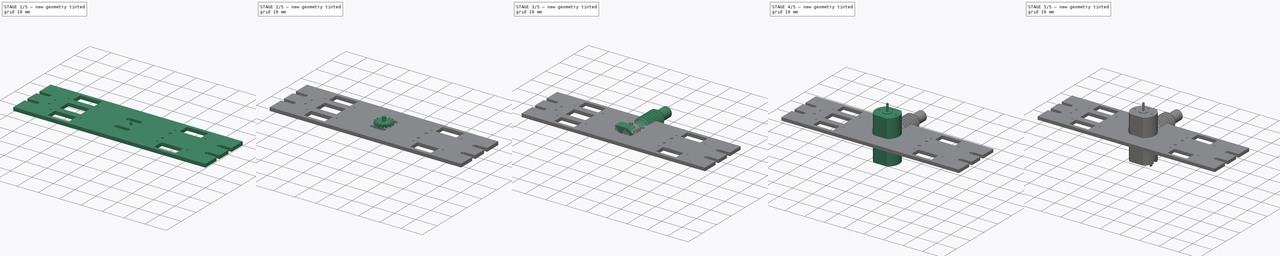
[diagram: build sequence overview — one tinted view per stage of 5, left to right]
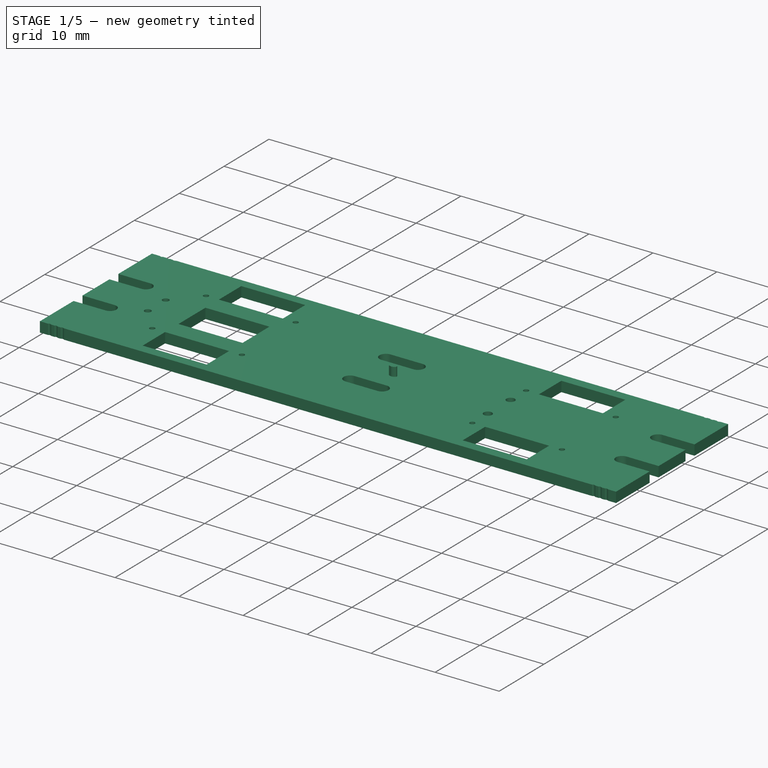
[diagram: stage 1 of 5 — iso view after this stage's code; geometry added in this stage tinted green]
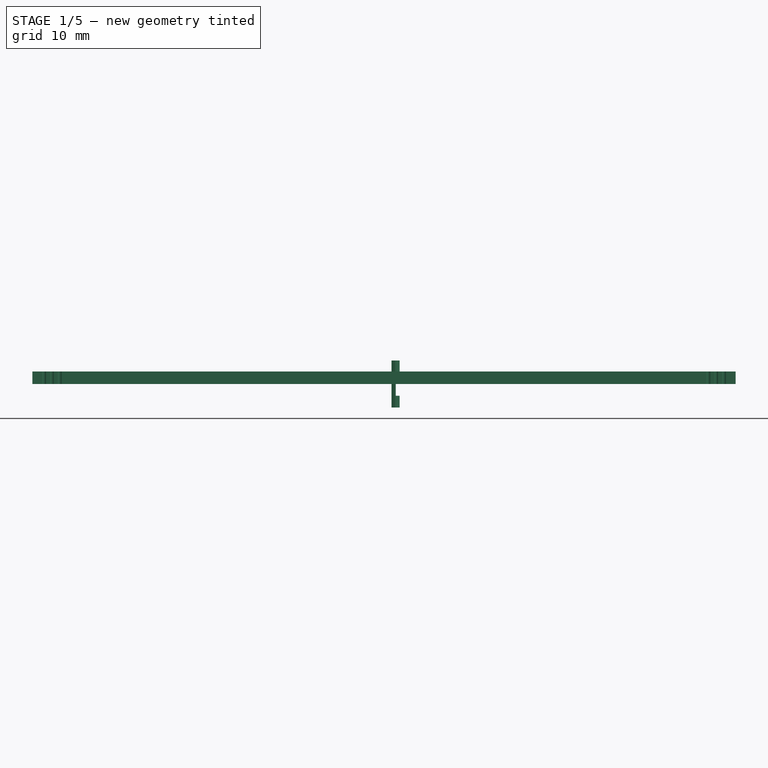
[diagram: stage 1 of 5 — front view after this stage's code; geometry added in this stage tinted green]
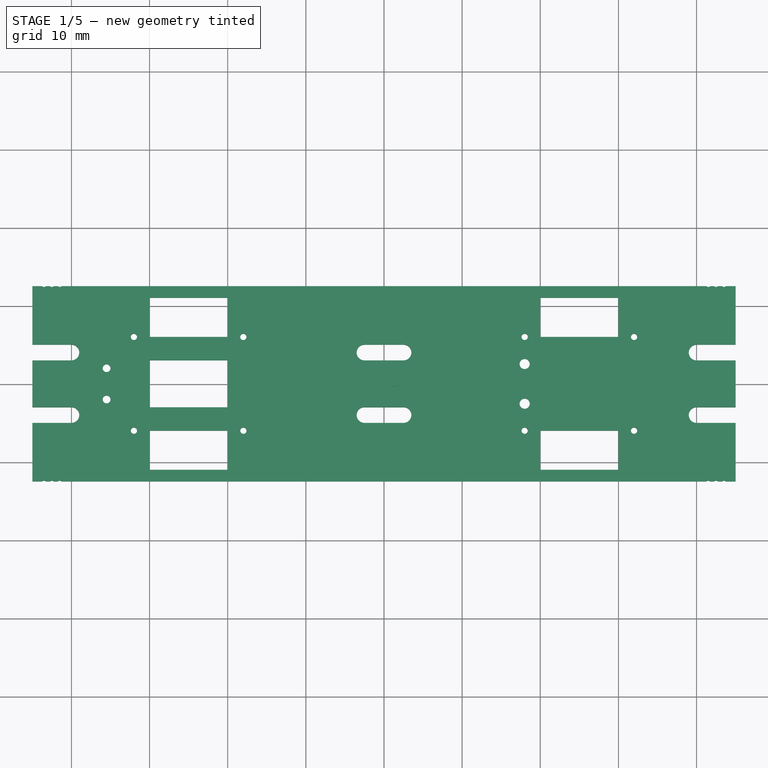
[diagram: stage 1 of 5 — top view after this stage's code; geometry added in this stage tinted green]
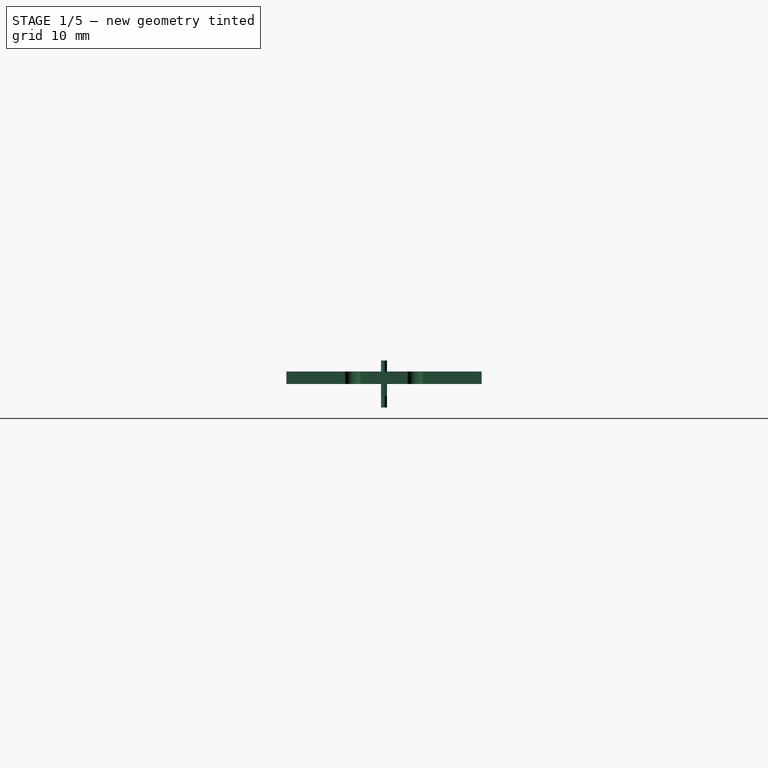
[diagram: stage 1 of 5 — right view after this stage's code; geometry added in this stage tinted green]
FCSTD DOCUMENT  (FreeCAD 0.18R16131 (Git))
Label: Engine Mockup
License: All rights reserved
LicenseURL: http://en.wikipedia.org/wiki/All_rights_reserved
objects: App::Part×80, Part::Feature×77, Sketcher::SketchObject×18, PartDesign::Pad×11, PartDesign::Body×6, PartDesign::Pocket×5, PartDesign::Groove×3, Part::Part2DObjectPython×3, PartDesign::PolarPattern×1, PartDesign::Revolution×1, PartDesign::FeatureBase×1
note: 146 computed .brp shape members not serialized (recipe doc carries the construction recipe); baked Part::Feature solids carry a one-line shape summary decoded from their .brp

FEATURE [PartDesign::Body] Body005  label="Body007"
  Group = -> [InvoluteGear,Sketch015,Pad,Sketch001,Groove001]
  Origin = -> Origin058
  Tip = -> Groove001
FEATURE [Sketcher::SketchObject] Sketch016
  MapMode = 5
  Placement = pos=(0,0,0) rot=(1,0,0;1.5708rad)
  Support = -> [XZ_Plane001]
  sketch-geometry (10):
    g0: LineSegment StartX=-4.57972 StartY=1.5 StartZ=0 EndX=-1.5 EndY=1.5 EndZ=0
    g1: LineSegment StartX=-1.5 StartY=1.5 StartZ=0 EndX=-1.5 EndY=-1.5 EndZ=0
    g2: LineSegment StartX=-1.5 StartY=-1.5 StartZ=0 EndX=-4.57972 EndY=-1.5 EndZ=0
    g3: LineSegment StartX=-4.57972 StartY=-1.5 StartZ=0 EndX=-4.57972 EndY=1.5 EndZ=0
    g4: LineSegment StartX=0 StartY=5 StartZ=0 EndX=-1 EndY=5 EndZ=0
    g5: LineSegment StartX=-1 StartY=5 StartZ=0 EndX=-1 EndY=-5 EndZ=0
    g6: LineSegment StartX=-1 StartY=-5 StartZ=0 EndX=0 EndY=-5 EndZ=0
    g7: LineSegment StartX=0 StartY=-5 StartZ=0 EndX=0 EndY=5 EndZ=0
    g8: LineSegment [constr] StartX=-1 StartY=5 StartZ=0 EndX=-1.5 EndY=1.5 EndZ=0
    g9: LineSegment [constr] StartX=-1.5 StartY=-1.5 StartZ=0 EndX=-1 EndY=-5 EndZ=0
  constraints (27):
    c: Coincident(g0,g1)
    c: Coincident(g1,g2)
    c: Coincident(g2,g3)
    c: Coincident(g3,g0)
    c: Horizontal(g0)
    c: Horizontal(g2)
    c: Vertical(g1)
    c: Vertical(g3)
    c: DistanceX(g0,g-1) = 1.5
    c: DistanceY(g-1,g0) = 1.5
    c: DistanceY(g2,g-1) = 1.5
    c: Coincident(g4,g5)
    c: Coincident(g5,g6)
    c: Coincident(g6,g7)
    c: Coincident(g7,g4)
    c: Horizontal(g4)
    c: Horizontal(g6)
    c: Vertical(g5)
    c: Vertical(g7)
    c: PointOnObject(g4,g-2)
    c: Coincident(g8,g4)
    c: Coincident(g8,g0)
    c: Coincident(g9,g1)
    c: Coincident(g9,g5)
    c: DistanceX(g4,g4) = 1
    c: Equal(g8,g9)
    c: DistanceY(g7,g7) = 10
FEATURE [Sketcher::SketchObject] Sketch017
  MapMode = 5
  Support = -> [XY_Plane001]
  sketch-geometry (2):
    g0: Circle CenterX=0 CenterY=0 CenterZ=0 NormalX=0 NormalY=0 NormalZ=1 AngleXU=0 Radius=4
    g1: Circle CenterX=0 CenterY=0 CenterZ=0 NormalX=0 NormalY=0 NormalZ=1 AngleXU=0 Radius=2
  constraints (4):
    c: Coincident(g0,g-1)
    c: Coincident(g1,g0)
    c: Diameter(g1) = 4
    c: Diameter(g0) = 8
FEATURE [Part::Part2DObjectPython] InvoluteGear001  # Draft 2D object (typed FeaturePython)
  ExternalGear = true
  HighPrecision = true
  Modules = 0.5
  NumberOfTeeth = 6
  PressureAngle = 20
FEATURE [PartDesign::Pad] Pad007
  Length = 6
  Length2 = 100
  Midplane = true
  Profile = -> InvoluteGear001
  Type = 0
FEATURE [PartDesign::Groove] Groove002
  Angle = 360
  Axis = (-3e-16,3e-16,1)
  Base = (0,0,0)
  BaseFeature = -> Pad007
  Profile = -> Sketch016
  ReferenceAxis = -> Z_Axis001
  Reversed = true
FEATURE [PartDesign::Body] Body006  label="Body008"
  Group = -> [InvoluteGear001,Sketch017,Pad007,Sketch016,Groove002,Pad008,InvoluteGear002,Pad009,Sketch018,Pad010]
  Origin = -> Origin001
  Placement = pos=(-5,0,0) rot=(0,0,1;0rad)
  Tip = -> Pad010
FEATURE [App::Part] Part003
  Group = -> [Body005,Body006]
  Origin = -> Origin059
  Placement = pos=(0,0,0) rot=(1,0,0;1.5708rad)
FEATURE [App::Part] Part004
  Group = -> [Part003]
  Origin = -> Origin060
  Placement = pos=(-25,0,0) rot=(0,1,0;1.5708rad)
FEATURE [App::Part] Part  label="Wheels"
  Group = -> [Part__Feature,Part__Feature028,Part004]
  Origin = -> Origin
  Placement = pos=(0,0,-7) rot=(0,0,1;0rad)
FEATURE [Part::Feature] Part__Feature064  label="SOLID012"
  shape: bbox 2 x 1.2 x 0.45 mm, 26 faces (baked)
FEATURE [App::Part] R_0805_2012Metric
  Group = -> [Part__Feature064]
  Origin = -> Origin061
  Placement = pos=(40,9.5,-0.05) rot=(1,0,0;3.14159rad)
FEATURE [Part::Feature] Part__Feature065  label="SOLID013"
  shape: bbox 2 x 1.2 x 0.45 mm, 26 faces (baked)
FEATURE [App::Part] R_0805_2012Metric001
  Group = -> [Part__Feature065]
  Origin = -> Origin062
  Placement = pos=(35,9.5,-0.05) rot=(1,0,0;3.14159rad)
FEATURE [Part::Feature] Part__Feature067  label="SOLID015"
  shape: bbox 2 x 1.2 x 0.45 mm, 26 faces (baked)
FEATURE [App::Part] R_0805_2012Metric002
  Group = -> [Part__Feature067]
  Origin = -> Origin064
  Placement = pos=(22.5,3.5,1.65) rot=(0,0,1;1.5708rad)
FEATURE [Part::Feature] Part__Feature069  label="SOLID017"
  shape: bbox 2 x 1.2 x 0.45 mm, 26 faces (baked)
FEATURE [App::Part] R_0805_2012Metric003
  Group = -> [Part__Feature069]
  Origin = -> Origin066
  Placement = pos=(15,9.5,-0.05) rot=(1,0,0;3.14159rad)
FEATURE [Part::Feature] Part__Feature070  label="SOLID018"
  shape: bbox 2 x 1.2 x 0.45 mm, 26 faces (baked)
FEATURE [App::Part] R_0805_2012Metric004
  Group = -> [Part__Feature070]
  Origin = -> Origin067
  Placement = pos=(10,9.5,-0.05) rot=(1,0,0;3.14159rad)
FEATURE [Part::Feature] Part__Feature071  label="SOLID019"
  shape: bbox 2 x 1.2 x 0.45 mm, 26 faces (baked)
FEATURE [App::Part] R_0805_2012Metric005
  Group = -> [Part__Feature071]
  Origin = -> Origin068
  Placement = pos=(5,9.5,-0.05) rot=(1,0,0;3.14159rad)
FEATURE [Part::Feature] Part__Feature072  label="SOLID020"
  shape: bbox 2 x 1.2 x 0.45 mm, 26 faces (baked)
FEATURE [App::Part] R_0805_2012Metric006
  Group = -> [Part__Feature072]
  Origin = -> Origin069
  Placement = pos=(0,9.5,-0.05) rot=(1,0,0;3.14159rad)
FEATURE [Part::Feature] Part__Feature073  label="SOLID021"
  shape: bbox 2 x 1.2 x 0.45 mm, 26 faces (baked)
FEATURE [App::Part] R_0805_2012Metric007
  Group = -> [Part__Feature073]
  Origin = -> Origin070
  Placement = pos=(-5,9.5,-0.05) rot=(1,0,0;3.14159rad)
FEATURE [Part::Feature] Part__Feature074  label="SOLID022"
  shape: bbox 2 x 1.2 x 0.45 mm, 26 faces (baked)
FEATURE [App::Part] R_0805_2012Metric008
  Group = -> [Part__Feature074]
  Origin = -> Origin071
  Placement = pos=(-10,9.5,-0.05) rot=(1,0,0;3.14159rad)
FEATURE [Part::Feature] Part__Feature075  label="SOLID023"
  shape: bbox 2 x 1.2 x 0.45 mm, 26 faces (baked)
FEATURE [App::Part] R_0805_2012Metric009
  Group = -> [Part__Feature075]
  Origin = -> Origin072
  Placement = pos=(-15,9.5,-0.05) rot=(1,0,0;3.14159rad)
FEATURE [Part::Feature] Part__Feature078  label="SOLID026"
  shape: bbox 2 x 1.2 x 0.45 mm, 26 faces (baked)
FEATURE [App::Part] R_0805_2012Metric010
  Group = -> [Part__Feature078]
  Origin = -> Origin075
  Placement = pos=(20.5,3.5,1.65) rot=(0,0,1;1.5708rad)
FEATURE [Part::Feature] Part__Feature079  label="SOLID027"
  shape: bbox 2 x 1.2 x 0.45 mm, 26 faces (baked)
FEATURE [App::Part] R_0805_2012Metric011
  Group = -> [Part__Feature079]
  Origin = -> Origin076
  Placement = pos=(-35,9.5,-0.05) rot=(1,0,0;3.14159rad)
FEATURE [Part::Feature] Part__Feature080  label="SOLID028"
  shape: bbox 2 x 1.2 x 0.45 mm, 26 faces (baked)
FEATURE [App::Part] R_0805_2012Metric012
  Group = -> [Part__Feature080]
  Origin = -> Origin077
  Placement = pos=(-40,9.5,-0.05) rot=(1,0,0;3.14159rad)
FEATURE [Part::Feature] Part__Feature081  label="SOLID029"
  shape: bbox 2 x 1.27 x 0.8 mm, 39 faces (baked)
FEATURE [App::Part] D_0805_2012Metric
  Group = -> [Part__Feature081]
  Origin = -> Origin078
  Placement = pos=(40,11.5,-0.05) rot=(1,0,0;3.14159rad)
FEATURE [Part::Feature] Part__Feature082  label="SOLID030"
  shape: bbox 2 x 1.27 x 0.8 mm, 39 faces (baked)
FEATURE [App::Part] D_0805_2012Metric001
  Group = -> [Part__Feature082]
  Origin = -> Origin079
  Placement = pos=(35,11.5,-0.05) rot=(1,0,0;3.14159rad)
FEATURE [Part::Feature] Part__Feature083  label="SOLID031"
  shape: bbox 3.8 x 1.6 x 1.25 mm, 67 faces (baked)
FEATURE [App::Part] D_SOD_123  label="D_SOD-123"
  Group = -> [Part__Feature083]
  Origin = -> Origin080
  Placement = pos=(32,8.5,-0.05) rot=(0.707107,0.707107,0;3.14159rad)
FEATURE [Part::Feature] Part__Feature084  label="SOLID032"
  shape: bbox 3.8 x 1.6 x 1.25 mm, 67 faces (baked)
FEATURE [App::Part] D_SOD_123001  label="D_SOD-124"
  Group = -> [Part__Feature084]
  Origin = -> Origin081
  Placement = pos=(18,8.5,-0.05) rot=(-0.707107,0.707107,0;3.14159rad)
FEATURE [Part::Feature] Part__Feature085  label="SOLID033"
  shape: bbox 2 x 1.27 x 0.8 mm, 39 faces (baked)
FEATURE [App::Part] D_0805_2012Metric002
  Group = -> [Part__Feature085]
  Origin = -> Origin082
  Placement = pos=(15,11.5,-0.05) rot=(1,0,0;3.14159rad)
FEATURE [Part::Feature] Part__Feature086  label="SOLID034"
  shape: bbox 2 x 1.27 x 0.8 mm, 39 faces (baked)
FEATURE [App::Part] D_0805_2012Metric003
  Group = -> [Part__Feature086]
  Origin = -> Origin083
  Placement = pos=(10,11.5,-0.05) rot=(1,0,0;3.14159rad)
FEATURE [Part::Feature] Part__Feature087  label="SOLID035"
  shape: bbox 2 x 1.27 x 0.8 mm, 39 faces (baked)
FEATURE [App::Part] D_0805_2012Metric004
  Group = -> [Part__Feature087]
  Origin = -> Origin084
  Placement = pos=(5,11.5,-0.05) rot=(1,0,0;3.14159rad)
FEATURE [Part::Feature] Part__Feature088  label="SOLID036"
  shape: bbox 2 x 1.27 x 0.8 mm, 39 faces (baked)
FEATURE [App::Part] D_0805_2012Metric005
  Group = -> [Part__Feature088]
  Origin = -> Origin085
  Placement = pos=(0,11.5,-0.05) rot=(1,0,0;3.14159rad)
FEATURE [Part::Feature] Part__Feature089  label="SOLID037"
  shape: bbox 2 x 1.27 x 0.8 mm, 39 faces (baked)
FEATURE [App::Part] D_0805_2012Metric006
  Group = -> [Part__Feature089]
  Origin = -> Origin086
  Placement = pos=(-5,11.5,-0.05) rot=(1,0,0;3.14159rad)
FEATURE [Part::Feature] Part__Feature090  label="SOLID038"
  shape: bbox 2 x 1.27 x 0.8 mm, 39 faces (baked)
FEATURE [App::Part] D_0805_2012Metric007
  Group = -> [Part__Feature090]
  Origin = -> Origin087
  Placement = pos=(-10,11.5,-0.05) rot=(1,0,0;3.14159rad)
FEATURE [Part::Feature] Part__Feature091  label="SOLID039"
  shape: bbox 2 x 1.27 x 0.8 mm, 39 faces (baked)
FEATURE [App::Part] D_0805_2012Metric008
  Group = -> [Part__Feature091]
  Origin = -> Origin088
  Placement = pos=(-15,11.5,-0.05) rot=(1,0,0;3.14159rad)
FEATURE [Part::Feature] Part__Feature092  label="SOLID040"
  shape: bbox 3.8 x 1.6 x 1.25 mm, 67 faces (baked)
FEATURE [App::Part] D_SOD_123002  label="D_SOD-125"
  Group = -> [Part__Feature092]
  Origin = -> Origin089
  Placement = pos=(-32,8.5,-0.05) rot=(0.707107,0.707107,0;3.14159rad)
FEATURE [Part::Feature] Part__Feature093  label="SOLID041"
  shape: bbox 3.8 x 1.6 x 1.25 mm, 67 faces (baked)
FEATURE [App::Part] D_SOD_123003  label="D_SOD-126"
  Group = -> [Part__Feature093]
  Origin = -> Origin090
  Placement = pos=(-18,8.5,-0.05) rot=(-0.707107,0.707107,0;3.14159rad)
FEATURE [Part::Feature] Part__Feature094  label="SOLID042"
  shape: bbox 2 x 1.27 x 0.8 mm, 39 faces (baked)
FEATURE [App::Part] D_0805_2012Metric009
  Group = -> [Part__Feature094]
  Origin = -> Origin091
  Placement = pos=(-35,11.5,-0.05) rot=(1,0,0;3.14159rad)
FEATURE [Part::Feature] Part__Feature095  label="SOLID043"
  shape: bbox 2 x 1.27 x 0.8 mm, 39 faces (baked)
FEATURE [App::Part] D_0805_2012Metric010
  Group = -> [Part__Feature095]
  Origin = -> Origin092
  Placement = pos=(-40,11.5,-0.05) rot=(1,0,0;3.14159rad)
FEATURE [Part::Feature] Part__Feature096  label="SOLID044"
  shape: bbox 2 x 1.2 x 0.45 mm, 26 faces (baked)
FEATURE [App::Part] R_0805_2012Metric013
  Group = -> [Part__Feature096]
  Origin = -> Origin093
  Placement = pos=(40,-9.5,-0.05) rot=(1,0,0;3.14159rad)
FEATURE [Part::Feature] Part__Feature097  label="SOLID045"
  shape: bbox 2 x 1.2 x 0.45 mm, 26 faces (baked)
FEATURE [App::Part] R_0805_2012Metric014
  Group = -> [Part__Feature097]
  Origin = -> Origin094
  Placement = pos=(35,-9.5,-0.05) rot=(1,0,0;3.14159rad)
FEATURE [Part::Feature] Part__Feature099  label="SOLID047"
  shape: bbox 2 x 1.2 x 0.45 mm, 26 faces (baked)
FEATURE [App::Part] R_0805_2012Metric015
  Group = -> [Part__Feature099]
  Origin = -> Origin096
  Placement = pos=(22.5,-3.5,1.65) rot=(0,0,-1;1.5708rad)
FEATURE [Part::Feature] Part__Feature101  label="SOLID049"
  shape: bbox 2 x 1.2 x 0.45 mm, 26 faces (baked)
FEATURE [App::Part] R_0805_2012Metric016
  Group = -> [Part__Feature101]
  Origin = -> Origin098
  Placement = pos=(15,-9.5,-0.05) rot=(1,0,0;3.14159rad)
FEATURE [Part::Feature] Part__Feature102  label="SOLID050"
  shape: bbox 2 x 1.2 x 0.45 mm, 26 faces (baked)
FEATURE [App::Part] R_0805_2012Metric017
  Group = -> [Part__Feature102]
  Origin = -> Origin099
  Placement = pos=(10,-9.5,-0.05) rot=(1,0,0;3.14159rad)
FEATURE [Part::Feature] Part__Feature103  label="SOLID051"
  shape: bbox 2 x 1.2 x 0.45 mm, 26 faces (baked)
FEATURE [App::Part] R_0805_2012Metric018
  Group = -> [Part__Feature103]
  Origin = -> Origin100
  Placement = pos=(5,-9.5,-0.05) rot=(1,0,0;3.14159rad)
FEATURE [Part::Feature] Part__Feature104  label="SOLID052"
  shape: bbox 2 x 1.2 x 0.45 mm, 26 faces (baked)
FEATURE [App::Part] R_0805_2012Metric019
  Group = -> [Part__Feature104]
  Origin = -> Origin101
  Placement = pos=(0,-9.5,-0.05) rot=(1,0,0;3.14159rad)
FEATURE [Part::Feature] Part__Feature105  label="SOLID053"
  shape: bbox 2 x 1.2 x 0.45 mm, 26 faces (baked)
FEATURE [App::Part] R_0805_2012Metric020
  Group = -> [Part__Feature105]
  Origin = -> Origin102
  Placement = pos=(-5,-9.5,-0.05) rot=(1,0,0;3.14159rad)
FEATURE [Part::Feature] Part__Feature106  label="SOLID054"
  shape: bbox 2 x 1.2 x 0.45 mm, 26 faces (baked)
FEATURE [App::Part] R_0805_2012Metric021
  Group = -> [Part__Feature106]
  Origin = -> Origin103
  Placement = pos=(-10,-9.5,-0.05) rot=(1,0,0;3.14159rad)
FEATURE [Part::Feature] Part__Feature107  label="SOLID055"
  shape: bbox 2 x 1.2 x 0.45 mm, 26 faces (baked)
FEATURE [App::Part] R_0805_2012Metric022
  Group = -> [Part__Feature107]
  Origin = -> Origin104
  Placement = pos=(-15,-9.5,-0.05) rot=(1,0,0;3.14159rad)
FEATURE [Part::Feature] Part__Feature110  label="SOLID058"
  shape: bbox 2 x 1.2 x 0.45 mm, 26 faces (baked)
FEATURE [App::Part] R_0805_2012Metric023
  Group = -> [Part__Feature110]
  Origin = -> Origin107
  Placement = pos=(20.5,-3.5,1.65) rot=(0,0,-1;1.5708rad)
FEATURE [Part::Feature] Part__Feature111  label="SOLID059"
  shape: bbox 2 x 1.2 x 0.45 mm, 26 faces (baked)
FEATURE [App::Part] R_0805_2012Metric024
  Group = -> [Part__Feature111]
  Origin = -> Origin108
  Placement = pos=(-35,-9.5,-0.05) rot=(1,0,0;3.14159rad)
FEATURE [Part::Feature] Part__Feature112  label="SOLID060"
  shape: bbox 2 x 1.2 x 0.45 mm, 26 faces (baked)
FEATURE [App::Part] R_0805_2012Metric025
  Group = -> [Part__Feature112]
  Origin = -> Origin109
  Placement = pos=(-40,-9.5,-0.05) rot=(1,0,0;3.14159rad)
FEATURE [Part::Feature] Part__Feature113  label="SOLID061"
  shape: bbox 2 x 1.27 x 0.8 mm, 39 faces (baked)
FEATURE [App::Part] D_0805_2012Metric011
  Group = -> [Part__Feature113]
  Origin = -> Origin110
  Placement = pos=(40,-11.5,-0.05) rot=(1,0,0;3.14159rad)
FEATURE [Part::Feature] Part__Feature114  label="SOLID062"
  shape: bbox 2 x 1.27 x 0.8 mm, 39 faces (baked)
FEATURE [App::Part] D_0805_2012Metric012
  Group = -> [Part__Feature114]
  Origin = -> Origin111
  Placement = pos=(35,-11.5,-0.05) rot=(1,0,0;3.14159rad)
FEATURE [Part::Feature] Part__Feature115  label="SOLID063"
  shape: bbox 3.8 x 1.6 x 1.25 mm, 67 faces (baked)
FEATURE [App::Part] D_SOD_123004  label="D_SOD-127"
  Group = -> [Part__Feature115]
  Origin = -> Origin112
  Placement = pos=(32,-8.5,-0.05) rot=(-0.707107,0.707107,0;3.14159rad)
FEATURE [Part::Feature] Part__Feature116  label="SOLID064"
  shape: bbox 3.8 x 1.6 x 1.25 mm, 67 faces (baked)
FEATURE [App::Part] D_SOD_123005  label="D_SOD-128"
  Group = -> [Part__Feature116]
  Origin = -> Origin113
  Placement = pos=(18,-8.5,-0.05) rot=(0.707107,0.707107,0;3.14159rad)
FEATURE [Part::Feature] Part__Feature117  label="SOLID065"
  shape: bbox 2 x 1.27 x 0.8 mm, 39 faces (baked)
FEATURE [App::Part] D_0805_2012Metric013
  Group = -> [Part__Feature117]
  Origin = -> Origin114
  Placement = pos=(15,-11.5,-0.05) rot=(1,0,0;3.14159rad)
FEATURE [Part::Feature] Part__Feature118  label="SOLID066"
  shape: bbox 2 x 1.27 x 0.8 mm, 39 faces (baked)
FEATURE [App::Part] D_0805_2012Metric014
  Group = -> [Part__Feature118]
  Origin = -> Origin115
  Placement = pos=(10,-11.5,-0.05) rot=(1,0,0;3.14159rad)
FEATURE [Part::Feature] Part__Feature119  label="SOLID067"
  shape: bbox 2 x 1.27 x 0.8 mm, 39 faces (baked)
FEATURE [App::Part] D_0805_2012Metric015
  Group = -> [Part__Feature119]
  Origin = -> Origin116
  Placement = pos=(5,-11.5,-0.05) rot=(1,0,0;3.14159rad)
FEATURE [Part::Feature] Part__Feature120  label="SOLID068"
  shape: bbox 2 x 1.27 x 0.8 mm, 39 faces (baked)
FEATURE [App::Part] D_0805_2012Metric016
  Group = -> [Part__Feature120]
  Origin = -> Origin117
  Placement = pos=(0,-11.5,-0.05) rot=(1,0,0;3.14159rad)
FEATURE [Part::Feature] Part__Feature121  label="SOLID069"
  shape: bbox 2 x 1.27 x 0.8 mm, 39 faces (baked)
FEATURE [App::Part] D_0805_2012Metric017
  Group = -> [Part__Feature121]
  Origin = -> Origin118
  Placement = pos=(-5,-11.5,-0.05) rot=(1,0,0;3.14159rad)
FEATURE [Part::Feature] Part__Feature122  label="SOLID070"
  shape: bbox 2 x 1.27 x 0.8 mm, 39 faces (baked)
FEATURE [App::Part] D_0805_2012Metric018
  Group = -> [Part__Feature122]
  Origin = -> Origin119
  Placement = pos=(-10,-11.5,-0.05) rot=(1,0,0;3.14159rad)
FEATURE [Part::Feature] Part__Feature123  label="SOLID071"
  shape: bbox 2 x 1.27 x 0.8 mm, 39 faces (baked)
FEATURE [App::Part] D_0805_2012Metric019
  Group = -> [Part__Feature123]
  Origin = -> Origin120
  Placement = pos=(-15,-11.5,-0.05) rot=(1,0,0;3.14159rad)
FEATURE [Part::Feature] Part__Feature124  label="SOLID072"
  shape: bbox 3.8 x 1.6 x 1.25 mm, 67 faces (baked)
FEATURE [App::Part] D_SOD_123006  label="D_SOD-129"
  Group = -> [Part__Feature124]
  Origin = -> Origin121
  Placement = pos=(-32,-8.5,-0.05) rot=(-0.707107,0.707107,0;3.14159rad)
FEATURE [Part::Feature] Part__Feature125  label="SOLID073"
  shape: bbox 3.8 x 1.6 x 1.25 mm, 67 faces (baked)
FEATURE [App::Part] D_SOD_123007  label="D_SOD-130"
  Group = -> [Part__Feature125]
  Origin = -> Origin122
  Placement = pos=(-18,-8.5,-0.05) rot=(0.707107,0.707107,0;3.14159rad)
FEATURE [Part::Feature] Part__Feature126  label="SOLID074"
  shape: bbox 2 x 1.27 x 0.8 mm, 39 faces (baked)
FEATURE [App::Part] D_0805_2012Metric020
  Group = -> [Part__Feature126]
  Origin = -> Origin123
  Placement = pos=(-35,-11.5,-0.05) rot=(1,0,0;3.14159rad)
FEATURE [Part::Feature] Part__Feature127  label="SOLID075"
  shape: bbox 2 x 1.27 x 0.8 mm, 39 faces (baked)
FEATURE [App::Part] D_0805_2012Metric021
  Group = -> [Part__Feature127]
  Origin = -> Origin124
  Placement = pos=(-40,-11.5,-0.05) rot=(1,0,0;3.14159rad)
FEATURE [Part::Feature] Part__Feature128  label="SOLID076"
  shape: bbox 2 x 1.2 x 0.45 mm, 26 faces (baked)
FEATURE [App::Part] R_0805_2012Metric026
  Group = -> [Part__Feature128]
  Origin = -> Origin125
  Placement = pos=(24.5,-3.5,1.65) rot=(0,0,-1;1.5708rad)
FEATURE [Part::Feature] Part__Feature129  label="SOLID077"
  shape: bbox 2 x 1.25 x 1.25 mm, 28 faces (baked)
FEATURE [App::Part] C_0805_2012Metric
  Group = -> [Part__Feature129]
  Origin = -> Origin126
  Placement = pos=(20.5,0,1.65) rot=(0,0,1;1.5708rad)
FEATURE [Part::Feature] Part__Feature130  label="SOLID078"
  shape: bbox 2 x 1.25 x 1.25 mm, 28 faces (baked)
FEATURE [App::Part] C_0805_2012Metric001
  Group = -> [Part__Feature130]
  Origin = -> Origin127
  Placement = pos=(22.5,0,1.65) rot=(0,0,1;1.5708rad)
FEATURE [Part::Feature] Part__Feature131  label="SOLID079"
  shape: bbox 2 x 1.2 x 0.45 mm, 26 faces (baked)
FEATURE [App::Part] R_0805_2012Metric027
  Group = -> [Part__Feature131]
  Origin = -> Origin128
  Placement = pos=(34,0,1.65) rot=(0,0,1;1.5708rad)
FEATURE [Part::Feature] Part__Feature132  label="SOLID080"
  shape: bbox 2 x 1.25 x 1.25 mm, 28 faces (baked)
FEATURE [App::Part] C_0805_2012Metric002
  Group = -> [Part__Feature132]
  Origin = -> Origin129
  Placement = pos=(26,0,1.65) rot=(0,0,1;1.5708rad)
FEATURE [Part::Feature] Part__Feature133  label="SOLID081"
  shape: bbox 2 x 1.25 x 1.25 mm, 28 faces (baked)
FEATURE [App::Part] C_0805_2012Metric003
  Group = -> [Part__Feature133]
  Origin = -> Origin130
  Placement = pos=(32,0,1.65) rot=(0,0,1;1.5708rad)
FEATURE [Part::Feature] Part__Feature134  label="SOLID082"
  shape: bbox 2.8 x 2.9 x 1.55 mm, 109 faces (baked)
FEATURE [App::Part] SOT_23_5  label="SOT-23-5"
  Group = -> [Part__Feature134]
  Origin = -> Origin131
  Placement = pos=(29,0,1.65) rot=(0,0,1;3.14159rad)
FEATURE [Part::Feature] Part__Feature041  label="SOLID005"
  shape: bbox 3.2 x 1.5 x 1.5 mm, 10 faces (baked)
FEATURE [App::Part] IS_POGO_D15x24_THT005
  Group = -> [Part__Feature041]
  Origin = -> Origin043
  Placement = pos=(-28.5,-6.5,1.65) rot=(0,1,0;1.5708rad)
FEATURE [App::Part] Open_CASCADE_STEP_translator_6_9_1001  label="Wall"
  Group = -> [IS_POGO_D15x24_THT,IS_POGO_D15x24_THT002,IS_POGO_D15x24_THT003,IS_POGO_D15x24_THT005,Part__Feature042]
  Origin = -> Origin044
  Placement = pos=(0,-3.2,0) rot=(1,0,0;1.5708rad)
FEATURE [Part::Feature] Part__Feature136  label="COMPOUND004"
  shape: bbox 90 x 47 x 1.6 mm, 194 faces (baked)
FEATURE [Part::Feature] Part__Feature135  label="COMPOUND003"
  shape: bbox 90 x 47 x 1.6 mm, 194 faces (baked)
FEATURE [PartDesign::FeatureBase] BaseFeature
  BaseFeature = -> Part__Feature136
FEATURE [Sketcher::SketchObject] Sketch
  MapMode = 5
  Placement = pos=(0,0,1.6) rot=(0,0,1;0rad)
  Support = -> [BaseFeature]
  sketch-geometry (8):
    g0: LineSegment StartX=-51.9171 StartY=42.8561 StartZ=0 EndX=64.3306 EndY=42.8561 EndZ=0
    g1: LineSegment StartX=64.3306 StartY=42.8561 StartZ=0 EndX=64.3306 EndY=12.5 EndZ=0
    g2: LineSegment StartX=64.3306 StartY=12.5 StartZ=0 EndX=-51.9171 EndY=12.5 EndZ=0
    g3: LineSegment StartX=-51.9171 StartY=12.5 StartZ=0 EndX=-51.9171 EndY=42.8561 EndZ=0
    g4: LineSegment StartX=70.9672 StartY=-43.4198 StartZ=0 EndX=-53.8438 EndY=-43.4198 EndZ=0
    g5: LineSegment StartX=-53.8438 StartY=-43.4198 StartZ=0 EndX=-53.8438 EndY=-12.5 EndZ=0
    g6: LineSegment StartX=-53.8438 StartY=-12.5 StartZ=0 EndX=70.9672 EndY=-12.5 EndZ=0
    g7: LineSegment StartX=70.9672 StartY=-12.5 StartZ=0 EndX=70.9672 EndY=-43.4198 EndZ=0
  constraints (18):
    c: Coincident(g0,g1)
    c: Coincident(g1,g2)
    c: Coincident(g2,g3)
    c: Coincident(g3,g0)
    c: Horizontal(g0)
    c: Horizontal(g2)
    c: Vertical(g1)
    c: Vertical(g3)
    c: Coincident(g4,g5)
    c: Coincident(g5,g6)
    c: Coincident(g6,g7)
    c: Coincident(g7,g4)
    c: Horizontal(g4)
    c: Horizontal(g6)
    c: Vertical(g5)
    c: Vertical(g7)
    c: DistanceY(g6,g-1) = 12.5
    c: DistanceY(g-1,g1) = 12.5
FEATURE [PartDesign::Pocket] Pocket
  BaseFeature = -> BaseFeature
  Length = 5
  Length2 = 100
  Profile = -> Sketch
  Type = 0
FEATURE [PartDesign::Body] Body  label="Body009"
  BaseFeature = -> Part__Feature136
  Group = -> [BaseFeature,Sketch,Pocket]
  Origin = -> Origin133
  Tip = -> Pocket
FEATURE [App::Part] Open_CASCADE_STEP_translator_6_9_1003  label="Open CASCADE STEP translator 6.9 1"
  Group = -> [R_0805_2012Metric,R_0805_2012Metric001,R_0805_2012Metric002,R_0805_2012Metric003,R_0805_2012Metric004,R_0805_2012Metric005,R_0805_2012Metric006,R_0805_2012Metric007,R_0805_2012Metric008,R_0805_2012Metric009,R_0805_2012Metric010,R_0805_2012Metric011,R_0805_2012Metric012,D_0805_2012Metric,D_0805_2012Metric001,D_SOD_123,D_SOD_123001,D_0805_2012Metric002,D_0805_2012Metric003,D_0805_2012Metric004,+46 more]
  Origin = -> Origin132
FEATURE [App::Part] Open_CASCADE_STEP_translator_6_9_1  label="Chassis"
  Group = -> [Open_CASCADE_STEP_translator_6_9_1003]
  Origin = -> Origin037
  Placement = pos=(0,0,-1.6) rot=(0,0,1;0rad)
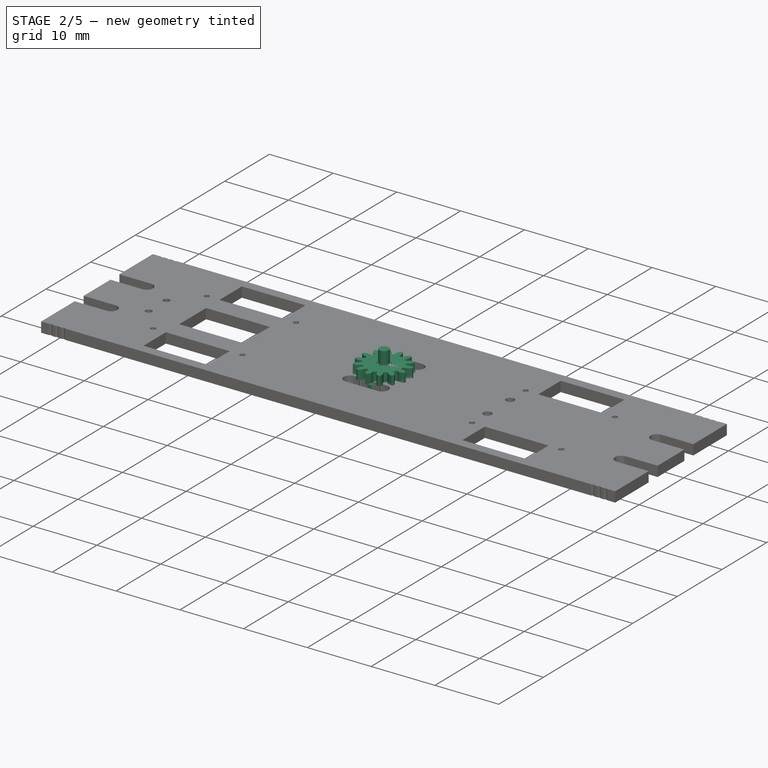
[diagram: stage 2 of 5 — iso view after this stage's code; geometry added in this stage tinted green]
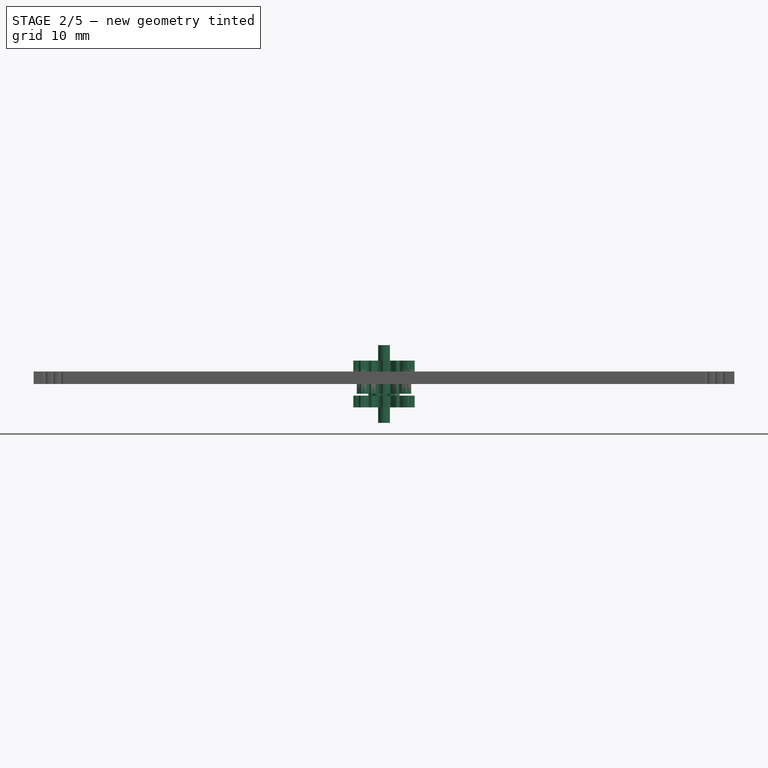
[diagram: stage 2 of 5 — front view after this stage's code; geometry added in this stage tinted green]
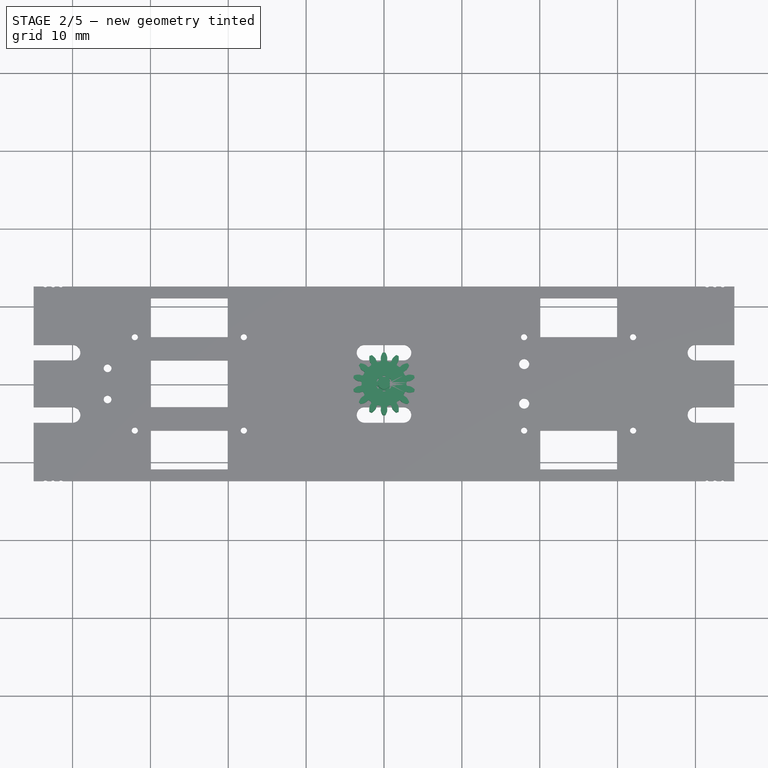
[diagram: stage 2 of 5 — top view after this stage's code; geometry added in this stage tinted green]
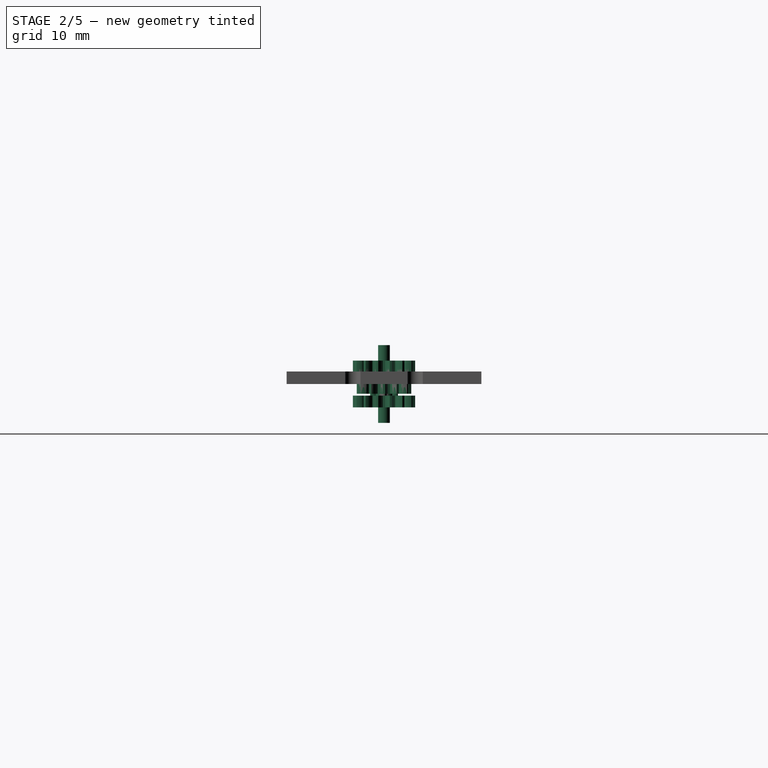
[diagram: stage 2 of 5 — right view after this stage's code; geometry added in this stage tinted green]
FEATURE [PartDesign::Body] Body003  label="Body005"
  Group = -> [Sketch012,Pad006,Sketch013,Pocket004]
  Origin = -> Origin056
  Placement = pos=(0,0,37.5) rot=(1,0,0;1.5708rad)
  Tip = -> Pocket004
FEATURE [App::Part] Part002  label="Drive"
  Group = -> [Body001,Body002,Body003]
  Origin = -> Origin054
  Placement = pos=(0,0,5) rot=(0,1,0;-1.5708rad)
FEATURE [Part::Part2DObjectPython] InvoluteGear  # Draft 2D object (typed FeaturePython)
  ExternalGear = true
  HighPrecision = true
  Modules = 0.5
  NumberOfTeeth = 14
  Placement = pos=(0,0,0) rot=(0,0,1;0.224399rad)
  PressureAngle = 20
  expr: Placement.Rotation.Angle = 360 / 28
FEATURE [PartDesign::Pad] Pad
  Length = 6
  Length2 = 100
  Midplane = true
  Placement = pos=(0,0,0) rot=(0,0,1;0.224399rad)
  Profile = -> InvoluteGear
  Type = 0
FEATURE [Sketcher::SketchObject] Sketch015
  MapMode = 5
  Support = -> [XY_Plane058]
  sketch-geometry (2):
    g0: Circle CenterX=0 CenterY=0 CenterZ=0 NormalX=0 NormalY=0 NormalZ=1 AngleXU=0 Radius=4
    g1: Circle CenterX=0 CenterY=0 CenterZ=0 NormalX=0 NormalY=0 NormalZ=1 AngleXU=0 Radius=2.5
  constraints (4):
    c: Coincident(g0,g-1)
    c: Coincident(g1,g0)
    c: Diameter(g1) = 5
    c: Diameter(g0) = 8
FEATURE [Sketcher::SketchObject] Sketch001
  MapMode = 5
  Placement = pos=(0,0,0) rot=(1,0,0;1.5708rad)
  Support = -> [XZ_Plane058]
  sketch-geometry (10):
    g0: LineSegment StartX=-4.57972 StartY=1.5 StartZ=0 EndX=-1.5 EndY=1.5 EndZ=0
    g1: LineSegment StartX=-1.5 StartY=1.5 StartZ=0 EndX=-1.5 EndY=-1.5 EndZ=0
    g2: LineSegment StartX=-1.5 StartY=-1.5 StartZ=0 EndX=-4.57972 EndY=-1.5 EndZ=0
    g3: LineSegment StartX=-4.57972 StartY=-1.5 StartZ=0 EndX=-4.57972 EndY=1.5 EndZ=0
    g4: LineSegment StartX=0 StartY=5 StartZ=0 EndX=-1 EndY=5 EndZ=0
    g5: LineSegment StartX=-1 StartY=5 StartZ=0 EndX=-1 EndY=-5 EndZ=0
    g6: LineSegment StartX=-1 StartY=-5 StartZ=0 EndX=0 EndY=-5 EndZ=0
    g7: LineSegment StartX=0 StartY=-5 StartZ=0 EndX=0 EndY=5 EndZ=0
    g8: LineSegment [constr] StartX=-1 StartY=5 StartZ=0 EndX=-1.5 EndY=1.5 EndZ=0
    g9: LineSegment [constr] StartX=-1.5 StartY=-1.5 StartZ=0 EndX=-1 EndY=-5 EndZ=0
  constraints (27):
    c: Coincident(g0,g1)
    c: Coincident(g1,g2)
    c: Coincident(g2,g3)
    c: Coincident(g3,g0)
    c: Horizontal(g0)
    c: Horizontal(g2)
    c: Vertical(g1)
    c: Vertical(g3)
    c: DistanceX(g0,g-1) = 1.5
    c: DistanceY(g-1,g0) = 1.5
    c: DistanceY(g2,g-1) = 1.5
    c: Coincident(g4,g5)
    c: Coincident(g5,g6)
    c: Coincident(g6,g7)
    c: Coincident(g7,g4)
    c: Horizontal(g4)
    c: Horizontal(g6)
    c: Vertical(g5)
    c: Vertical(g7)
    c: PointOnObject(g4,g-2)
    c: Coincident(g8,g4)
    c: Coincident(g8,g0)
    c: Coincident(g9,g1)
    c: Coincident(g9,g5)
    c: DistanceX(g4,g4) = 1
    c: Equal(g8,g9)
    c: DistanceY(g7,g7) = 10
FEATURE [PartDesign::Groove] Groove001
  Angle = 360
  Axis = (-3e-16,3e-16,1)
  Base = (0,0,0)
  BaseFeature = -> Pad
  Placement = pos=(0,0,0) rot=(0,0,1;0.224399rad)
  Profile = -> Sketch001
  ReferenceAxis = -> Z_Axis058
  Reversed = true
FEATURE [PartDesign::Pad] Pad008
  BaseFeature = -> Groove002
  Length = 6
  Length2 = 100
  Midplane = true
  Profile = -> InvoluteGear001
  Type = 0
FEATURE [Part::Part2DObjectPython] InvoluteGear002  # Draft 2D object (typed FeaturePython)
  ExternalGear = true
  HighPrecision = true
  Modules = 0.5
  NumberOfTeeth = 12
  PressureAngle = 20
FEATURE [PartDesign::Pad] Pad009
  BaseFeature = -> Pad008
  Length = 2.5
  Length2 = 100
  Midplane = true
  Profile = -> InvoluteGear002
  Type = 0
FEATURE [Sketcher::SketchObject] Sketch018
  MapMode = 5
  Support = -> [XY_Plane001]
  sketch-geometry (1):
    g0: Circle CenterX=0 CenterY=0 CenterZ=0 NormalX=0 NormalY=0 NormalZ=1 AngleXU=0 Radius=0.75
  constraints (2):
    c: Coincident(g0,g-1)
    c: Diameter(g0) = 1.5
FEATURE [PartDesign::Pad] Pad010
  BaseFeature = -> Pad009
  Length = 10
  Length2 = 100
  Midplane = true
  Profile = -> Sketch018
  Type = 0
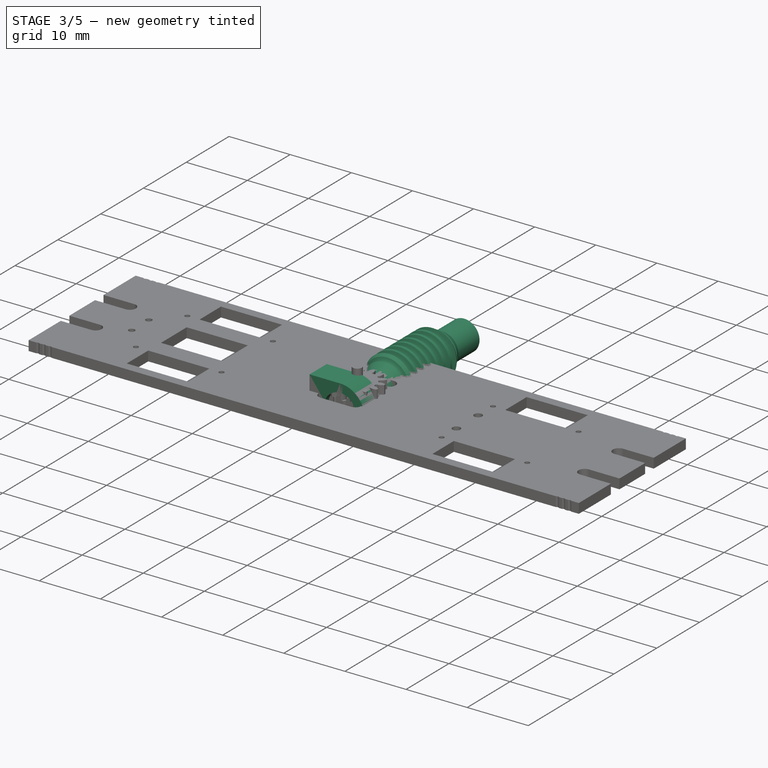
[diagram: stage 3 of 5 — iso view after this stage's code; geometry added in this stage tinted green]
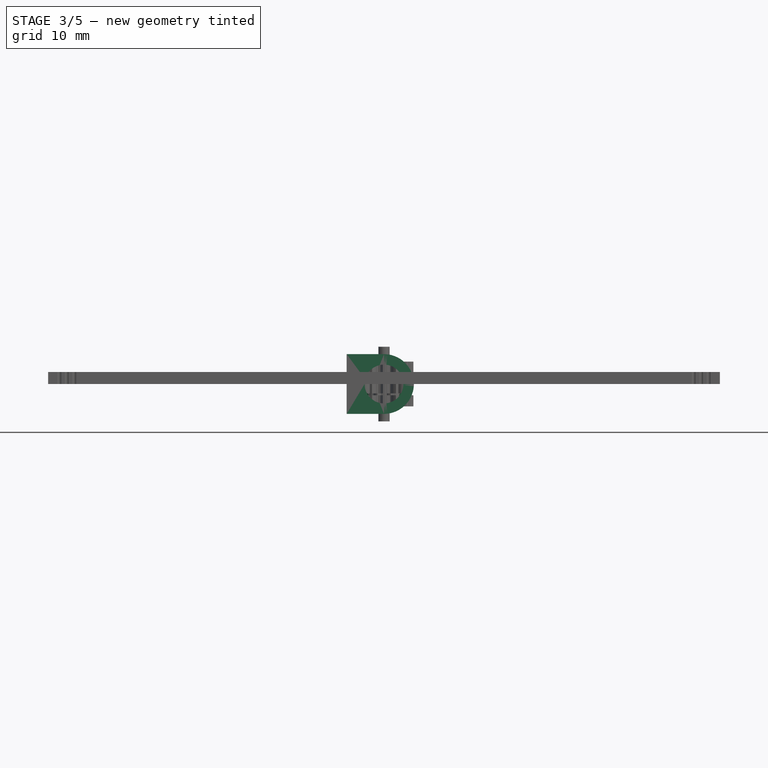
[diagram: stage 3 of 5 — front view after this stage's code; geometry added in this stage tinted green]
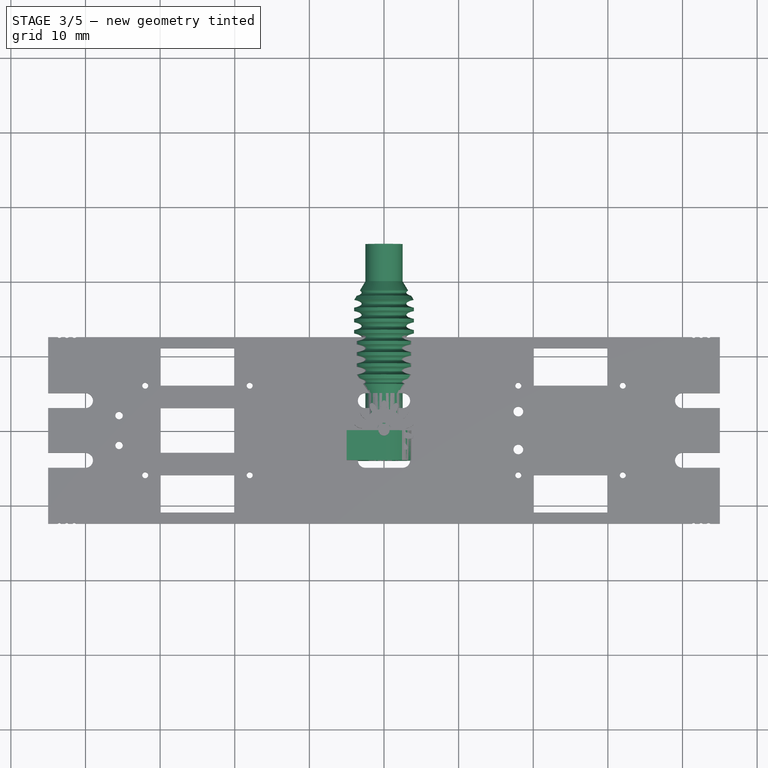
[diagram: stage 3 of 5 — top view after this stage's code; geometry added in this stage tinted green]
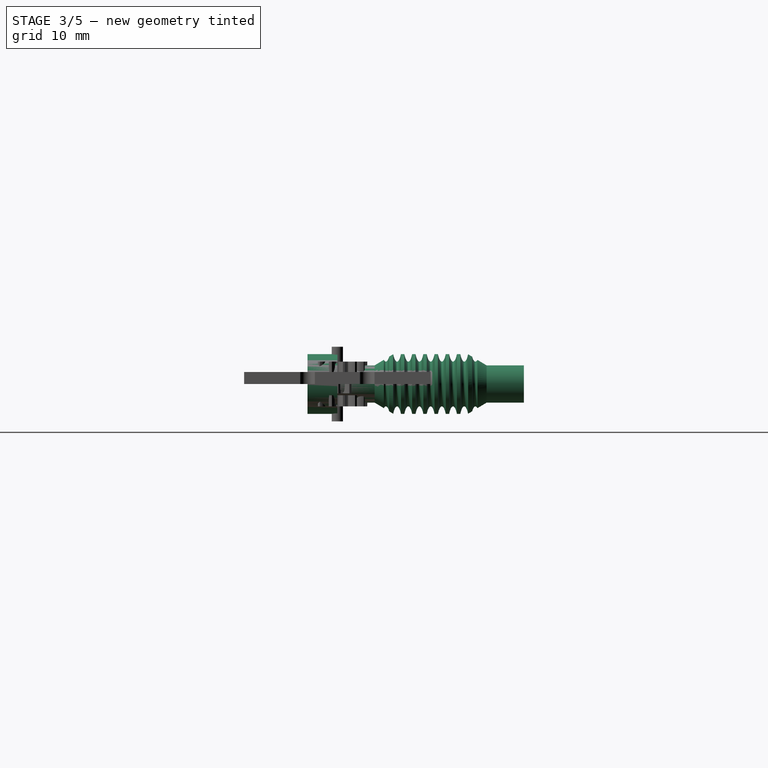
[diagram: stage 3 of 5 — right view after this stage's code; geometry added in this stage tinted green]
FEATURE [PartDesign::Body] Body001  label="Body003"
  Group = -> [Sketch002,Pad001,Sketch003,Pad002,Sketch004,Pad003,Sketch005,Pocket001,Sketch006,Pad004,Sketch007,Pocket002,Sketch008,Pad005,Sketch009,Pocket003,PolarPattern001]
  Origin = -> Origin053
  Placement = pos=(0,0,0) rot=(0,0,1;1.5708rad)
  Tip = -> PolarPattern001
FEATURE [Sketcher::SketchObject] Sketch010
  MapMode = 5
  Placement = pos=(0,0,0) rot=(0.57735,0.57735,0.57735;2.0944rad)
  Support = -> [YZ_Plane055]
  sketch-geometry (11):
    g0: LineSegment StartX=5 StartY=0 StartZ=0 EndX=5 EndY=0.5 EndZ=0
    g1: LineSegment StartX=5 StartY=0.5 StartZ=0 EndX=0 EndY=0.5 EndZ=0
    g2: LineSegment StartX=0 StartY=0.5 StartZ=0 EndX=0 EndY=2.5 EndZ=0
    g3: LineSegment StartX=5 StartY=0 StartZ=0 EndX=25 EndY=0 EndZ=0
    g4: LineSegment StartX=25 StartY=0 StartZ=0 EndX=25 EndY=2.5 EndZ=0
    g5: LineSegment StartX=25 StartY=2.5 StartZ=0 EndX=20 EndY=2.5 EndZ=0
    g6: LineSegment StartX=0 StartY=2.5 StartZ=0 EndX=5 EndY=2.5 EndZ=0
    g7: LineSegment StartX=5 StartY=2.5 StartZ=0 EndX=7.5 EndY=4 EndZ=0
    g8: LineSegment StartX=7.5 StartY=4 StartZ=0 EndX=17.5 EndY=4 EndZ=0
    g9: LineSegment StartX=17.5 StartY=4 StartZ=0 EndX=20 EndY=2.5 EndZ=0
    g10: LineSegment [constr] StartX=5 StartY=2.5 StartZ=0 EndX=20 EndY=2.5 EndZ=0
  constraints (33):
    c: Vertical(g0)
    c: Coincident(g1,g0)
    c: Horizontal(g1)
    c: Coincident(g2,g1)
    c: Vertical(g2)
    c: PointOnObject(g0,g-1)
    c: PointOnObject(g1,g-2)
    c: DistanceY(g-1,g2) = 2.5
    c: DistanceX(g1,g1) = 5
    c: Coincident(g3,g0)
    c: Coincident(g4,g3)
    c: Vertical(g4)
    c: PointOnObject(g3,g-1)
    c: Coincident(g5,g4)
    c: Horizontal(g5)
    c: DistanceX(g5,g5) = 5
    c: DistanceY(g0,g0) = 0.5
    c: Coincident(g6,g2)
    c: Horizontal(g6)
    c: Coincident(g7,g6)
    c: Coincident(g8,g7)
    c: Horizontal(g8)
    c: Coincident(g9,g8)
    c: Coincident(g9,g5)
    c: DistanceX(g-1,g5) = 20
    c: DistanceX(g-1,g6) = 5
    c: Equal(g7,g9)
    c: Coincident(g10,g6)
    c: Coincident(g10,g5)
    c: Horizontal(g10)
    c: Equal(g9,g7)
    c: DistanceX(g8,g8) = 10
    c: DistanceY(g-1,g7) = 4
FEATURE [PartDesign::Revolution] Revolution
  Angle = 360
  Axis = (1e-16,1,-1e-16)
  Base = (0,0,0)
  Placement = pos=(0,0,0) rot=(0.57735,0.57735,0.57735;2.0944rad)
  Profile = -> Sketch010
  ReferenceAxis = -> Y_Axis055
  Reversed = true
FEATURE [Sketcher::SketchObject] Sketch011
  MapMode = 5
  Placement = pos=(0,0,0) rot=(0.57735,0.57735,0.57735;2.0944rad)
  Support = -> [YZ_Plane055]
  sketch-geometry (59):
    g0: Ellipse CenterX=5 CenterY=6 CenterZ=0 NormalX=0 NormalY=0 NormalZ=1 MajorRadius=3 MinorRadius=0.702488 AngleXU=-1.5708
    g1: LineSegment [constr] StartX=5 StartY=3 StartZ=0 EndX=5 EndY=9 EndZ=0
    g2: LineSegment [constr] StartX=5.70249 StartY=6 StartZ=0 EndX=4.29751 EndY=6 EndZ=0
    g3: GeomPoint X=5 Y=3.08341 Z=0
    g4: GeomPoint X=5 Y=8.91659 Z=0
    g5: Ellipse CenterX=6.5 CenterY=6 CenterZ=0 NormalX=0 NormalY=0 NormalZ=1 MajorRadius=3 MinorRadius=0.702488 AngleXU=-1.5708
    g6: LineSegment [constr] StartX=6.5 StartY=3 StartZ=0 EndX=6.5 EndY=9 EndZ=0
    g7: LineSegment [constr] StartX=7.20249 StartY=6 StartZ=0 EndX=5.79751 EndY=6 EndZ=0
    g8: GeomPoint X=6.5 Y=3.08341 Z=0
    g9: GeomPoint X=6.5 Y=8.91659 Z=0
    g10: LineSegment [constr] StartX=5 StartY=6 StartZ=0 EndX=6.5 EndY=6 EndZ=0
    g11: Ellipse CenterX=8 CenterY=6 CenterZ=0 NormalX=0 NormalY=0 NormalZ=1 MajorRadius=3 MinorRadius=0.702488 AngleXU=-1.5708
    g12: LineSegment [constr] StartX=8 StartY=3 StartZ=0 EndX=8 EndY=9 EndZ=0
    g13: LineSegment [constr] StartX=8.70249 StartY=6 StartZ=0 EndX=7.29751 EndY=6 EndZ=0
    g14: GeomPoint X=8 Y=3.08341 Z=0
    g15: GeomPoint X=8 Y=8.91659 Z=0
    g16: LineSegment [constr] StartX=6.5 StartY=6 StartZ=0 EndX=8 EndY=6 EndZ=0
    g17: Ellipse CenterX=9.5 CenterY=6 CenterZ=0 NormalX=0 NormalY=0 NormalZ=1 MajorRadius=3 MinorRadius=0.702488 AngleXU=-1.5708
    g18: LineSegment [constr] StartX=9.5 StartY=3 StartZ=0 EndX=9.5 EndY=9 EndZ=0
    g19: LineSegment [constr] StartX=10.2025 StartY=6 StartZ=0 EndX=8.79751 EndY=6 EndZ=0
    g20: GeomPoint X=9.5 Y=3.08341 Z=0
    g21: GeomPoint X=9.5 Y=8.91659 Z=0
    g22: LineSegment [constr] StartX=8 StartY=6 StartZ=0 EndX=9.5 EndY=6 EndZ=0
    g23: Ellipse CenterX=11 CenterY=6 CenterZ=0 NormalX=0 NormalY=0 NormalZ=1 MajorRadius=3 MinorRadius=0.702488 AngleXU=-1.5708
    g24: LineSegment [constr] StartX=11 StartY=3 StartZ=0 EndX=11 EndY=9 EndZ=0
    g25: LineSegment [constr] StartX=11.7025 StartY=6 StartZ=0 EndX=10.2975 EndY=6 EndZ=0
    g26: GeomPoint X=11 Y=3.08341 Z=0
    g27: GeomPoint X=11 Y=8.91659 Z=0
    g28: LineSegment [constr] StartX=9.5 StartY=6 StartZ=0 EndX=11 EndY=6 EndZ=0
    g29: Ellipse CenterX=12.5 CenterY=6 CenterZ=0 NormalX=0 NormalY=0 NormalZ=1 MajorRadius=3 MinorRadius=0.702488 AngleXU=-1.5708
    g30: LineSegment [constr] StartX=12.5 StartY=3 StartZ=0 EndX=12.5 EndY=9 EndZ=0
    g31: LineSegment [constr] StartX=13.2025 StartY=6 StartZ=0 EndX=11.7975 EndY=6 EndZ=0
    g32: GeomPoint X=12.5 Y=3.08341 Z=0
    g33: GeomPoint X=12.5 Y=8.91659 Z=0
    g34: LineSegment [constr] StartX=11 StartY=6 StartZ=0 EndX=12.5 EndY=6 EndZ=0
    g35: Ellipse CenterX=14 CenterY=6 CenterZ=0 NormalX=0 NormalY=0 NormalZ=1 MajorRadius=3 MinorRadius=0.702488 AngleXU=-1.5708
    g36: LineSegment [constr] StartX=14 StartY=3 StartZ=0 EndX=14 EndY=9 EndZ=0
    g37: LineSegment [constr] StartX=14.7025 StartY=6 StartZ=0 EndX=13.2975 EndY=6 EndZ=0
    g38: GeomPoint X=14 Y=3.08341 Z=0
    g39: GeomPoint X=14 Y=8.91659 Z=0
    g40: LineSegment [constr] StartX=12.5 StartY=6 StartZ=0 EndX=14 EndY=6 EndZ=0
    g41: Ellipse CenterX=15.5 CenterY=6 CenterZ=0 NormalX=0 NormalY=0 NormalZ=1 MajorRadius=3 MinorRadius=0.702488 AngleXU=-1.5708
    g42: LineSegment [constr] StartX=15.5 StartY=3 StartZ=0 EndX=15.5 EndY=9 EndZ=0
    g43: LineSegment [constr] StartX=16.2025 StartY=6 StartZ=0 EndX=14.7975 EndY=6 EndZ=0
    g44: GeomPoint X=15.5 Y=3.08341 Z=0
    g45: GeomPoint X=15.5 Y=8.91659 Z=0
    g46: LineSegment [constr] StartX=14 StartY=6 StartZ=0 EndX=15.5 EndY=6 EndZ=0
    g47: Ellipse CenterX=17 CenterY=6 CenterZ=0 NormalX=0 NormalY=0 NormalZ=1 MajorRadius=3 MinorRadius=0.702488 AngleXU=-1.5708
    g48: LineSegment [constr] StartX=17 StartY=3 StartZ=0 EndX=17 EndY=9 EndZ=0
    g49: LineSegment [constr] StartX=17.7025 StartY=6 StartZ=0 EndX=16.2975 EndY=6 EndZ=0
    g50: GeomPoint X=17 Y=3.08341 Z=0
    g51: GeomPoint X=17 Y=8.91659 Z=0
    g52: LineSegment [constr] StartX=15.5 StartY=6 StartZ=0 EndX=17 EndY=6 EndZ=0
    g53: Ellipse CenterX=18.5 CenterY=6 CenterZ=0 NormalX=0 NormalY=0 NormalZ=1 MajorRadius=3 MinorRadius=0.702488 AngleXU=-1.5708
    g54: LineSegment [constr] StartX=18.5 StartY=3 StartZ=0 EndX=18.5 EndY=9 EndZ=0
    g55: LineSegment [constr] StartX=19.2025 StartY=6 StartZ=0 EndX=17.7975 EndY=6 EndZ=0
    g56: GeomPoint X=18.5 Y=3.08341 Z=0
    g57: GeomPoint X=18.5 Y=8.91659 Z=0
    g58: LineSegment [constr] StartX=17 StartY=6 StartZ=0 EndX=18.5 EndY=6 EndZ=0
  constraints (77):
    c: InternalAlignment(g1-g4 -> g0) x4
    c: Vertical(g1)
    c: DistanceY(g1,g1) = 6
    c: DistanceX(g-1,g0) = 5
    c: DistanceY(g-1,g1) = 3
    c: InternalAlignment(g6-g9 -> g5) x4
    c: Vertical(g6)
    c: Coincident(g0,g10)
    c: Coincident(g5,g10)
    c: Distance(g10) = 1.5
    c: Angle(g10) = 0
    c: InternalAlignment(g12-g15 -> g11) x4
    c: Vertical(g12)
    c: Coincident(g5,g16)
    c: Coincident(g11,g16)
    c: Equal(g10,g16)
    c: Parallel(g16,g10)
    c: InternalAlignment(g18-g21 -> g17) x4
    c: Vertical(g18)
    c: Coincident(g11,g22)
    c: Coincident(g17,g22)
    c: Equal(g10,g22)
    c: Parallel(g22,g10)
    c: InternalAlignment(g24-g27 -> g23) x4
    c: Vertical(g24)
    c: Coincident(g17,g28)
    c: Coincident(g23,g28)
    c: Equal(g10,g28)
    c: Parallel(g28,g10)
    c: InternalAlignment(g30-g33 -> g29) x4
    c: Vertical(g30)
    c: Coincident(g23,g34)
    c: Coincident(g29,g34)
    c: Equal(g10,g34)
    c: Parallel(g34,g10)
    c: InternalAlignment(g36-g39 -> g35) x4
    c: Vertical(g36)
    c: Coincident(g29,g40)
    c: Coincident(g35,g40)
    c: Equal(g10,g40)
    c: Parallel(g40,g10)
    c: InternalAlignment(g42-g45 -> g41) x4
    c: Vertical(g42)
    c: Coincident(g35,g46)
    c: Coincident(g41,g46)
    c: Equal(g10,g46)
    c: Parallel(g46,g10)
    c: InternalAlignment(g48-g51 -> g47) x4
    c: Vertical(g48)
    c: Coincident(g41,g52)
    c: Coincident(g47,g52)
    c: Equal(g10,g52)
    c: Parallel(g52,g10)
    c: InternalAlignment(g54-g57 -> g53) x4
    c: Vertical(g54)
    c: Coincident(g47,g58)
    c: Coincident(g53,g58)
    c: Equal(g10,g58)
    c: Parallel(g58,g10)
    c: Equal(g2,g7)
    c: Equal(g7,g13)
    c: Equal(g13,g19)
    c: Equal(g19,g25)
    c: Equal(g25,g31)
    c: Equal(g31,g37)
    c: Equal(g37,g43)
    c: Equal(g43,g49)
    c: Equal(g49,g55)
    c: Equal(g1,g6)
    c: Equal(g6,g12)
    c: Equal(g12,g18)
    c: Equal(g18,g24)
    c: Equal(g24,g30)
    c: Equal(g30,g36)
    c: Equal(g36,g42)
    c: Equal(g42,g48)
    c: Equal(g48,g54)
FEATURE [PartDesign::Groove] Groove
  Angle = 360
  Axis = (1e-16,1,-1e-16)
  Base = (0,0,0)
  BaseFeature = -> Revolution
  Placement = pos=(0,0,0) rot=(0.57735,0.57735,0.57735;2.0944rad)
  Profile = -> Sketch011
  ReferenceAxis = -> Y_Axis055
FEATURE [PartDesign::Body] Body002  label="Body004"
  Group = -> [Sketch010,Revolution,Sketch011,Groove]
  Origin = -> Origin055
  Placement = pos=(0,0,12.5) rot=(1,0,0;1.5708rad)
  Tip = -> Groove
FEATURE [Sketcher::SketchObject] Sketch012
  MapMode = 5
  Placement = pos=(0,0,0) rot=(0,0.707107,0.707107;3.14159rad)
  Support = -> [XZ_Plane056]
  sketch-geometry (5):
    g0: ArcOfCircle CenterX=0 CenterY=0 CenterZ=0 NormalX=0 NormalY=0 NormalZ=1 AngleXU=0 Radius=4 StartAngle=1.5708 EndAngle=4.71239
    g1: LineSegment StartX=-7e-16 StartY=-4 StartZ=0 EndX=5 EndY=-4 EndZ=0
    g2: LineSegment StartX=5 StartY=-4 StartZ=0 EndX=5 EndY=4 EndZ=0
    g3: LineSegment StartX=5 StartY=4 StartZ=0 EndX=0 EndY=4 EndZ=0
    g4: Circle CenterX=0 CenterY=0 CenterZ=0 NormalX=0 NormalY=0 NormalZ=1 AngleXU=0 Radius=2.6
  constraints (14):
    c: Coincident(g0,g-1)
    c: PointOnObject(g0,g-2)
    c: PointOnObject(g0,g-2)
    c: Coincident(g1,g0)
    c: Horizontal(g1)
    c: Coincident(g2,g1)
    c: Vertical(g2)
    c: Coincident(g3,g2)
    c: Coincident(g3,g0)
    c: Horizontal(g3)
    c: Diameter(g0) = 8
    c: DistanceX(g3,g3) = 5
    c: Coincident(g4,g0)
    c: Diameter(g4) = 5.2
FEATURE [PartDesign::Pad] Pad006
  Length = 4
  Length2 = 100
  Placement = pos=(0,0,0) rot=(1,0,0;1.5708rad)
  Profile = -> Sketch012
  Reversed = true
  Type = 0
FEATURE [Sketcher::SketchObject] Sketch013
  ExternalGeometry = -> [Pad006]
  MapMode = 5
  Placement = pos=(-5,0,0) rot=(0.707107,0,-0.707107;3.14159rad)
  Support = -> [Pad006]
  sketch-geometry (6):
    g0: Circle CenterX=-2 CenterY=2 CenterZ=0 NormalX=0 NormalY=0 NormalZ=1 AngleXU=0 Radius=0.6
    g1: Circle CenterX=2 CenterY=2 CenterZ=0 NormalX=0 NormalY=0 NormalZ=1 AngleXU=0 Radius=0.6
    g2: LineSegment [constr] StartX=-2 StartY=2 StartZ=0 EndX=-2e-16 EndY=0 EndZ=0
    g3: LineSegment [constr] StartX=0 StartY=0 StartZ=0 EndX=2 EndY=2 EndZ=0
    g4: LineSegment [constr] StartX=2 StartY=2 StartZ=0 EndX=0 EndY=4 EndZ=0
    g5: LineSegment [constr] StartX=-2 StartY=2 StartZ=0 EndX=-2e-16 EndY=4 EndZ=0
  constraints (15):
    c: Diameter(g0) = 1.2
    c: Equal(g0,g1)
    c: Coincident(g2,g0)
    c: Coincident(g2,g-1)
    c: Coincident(g3,g2)
    c: Coincident(g3,g1)
    c: Coincident(g4,g1)
    c: PointOnObject(g4,g-3)
    c: Coincident(g5,g0)
    c: Coincident(g5,g4)
    c: PointOnObject(g4,g-2)
    c: Equal(g5,g4)
    c: Equal(g4,g3)
    c: Equal(g3,g2)
    c: DistanceX(g0,g1) = 4
FEATURE [PartDesign::Pocket] Pocket004
  BaseFeature = -> Pad006
  Length = 4
  Length2 = 100
  Placement = pos=(0,0,0) rot=(1,0,0;1.5708rad)
  Profile = -> Sketch013
  Type = 0
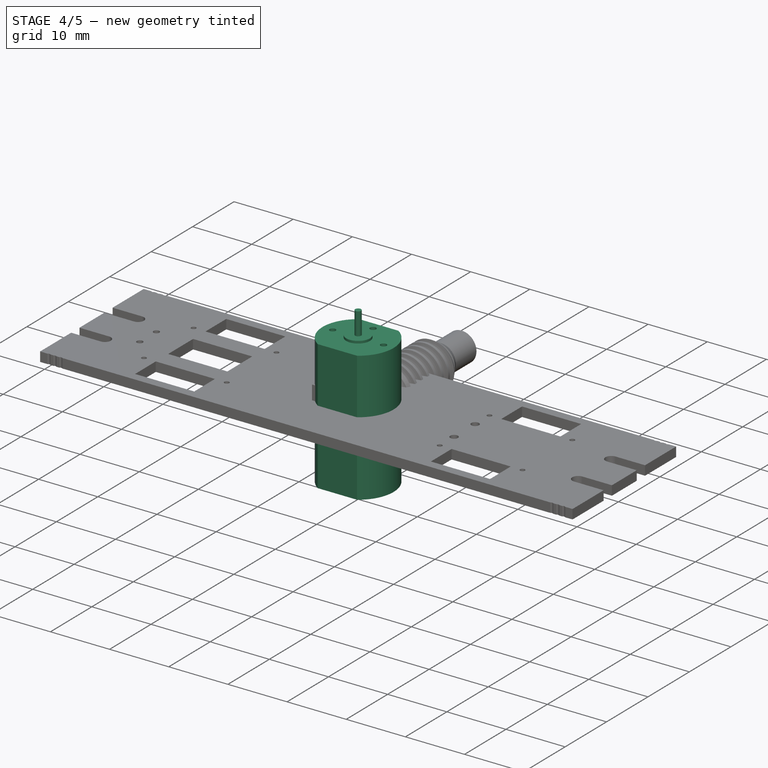
[diagram: stage 4 of 5 — iso view after this stage's code; geometry added in this stage tinted green]
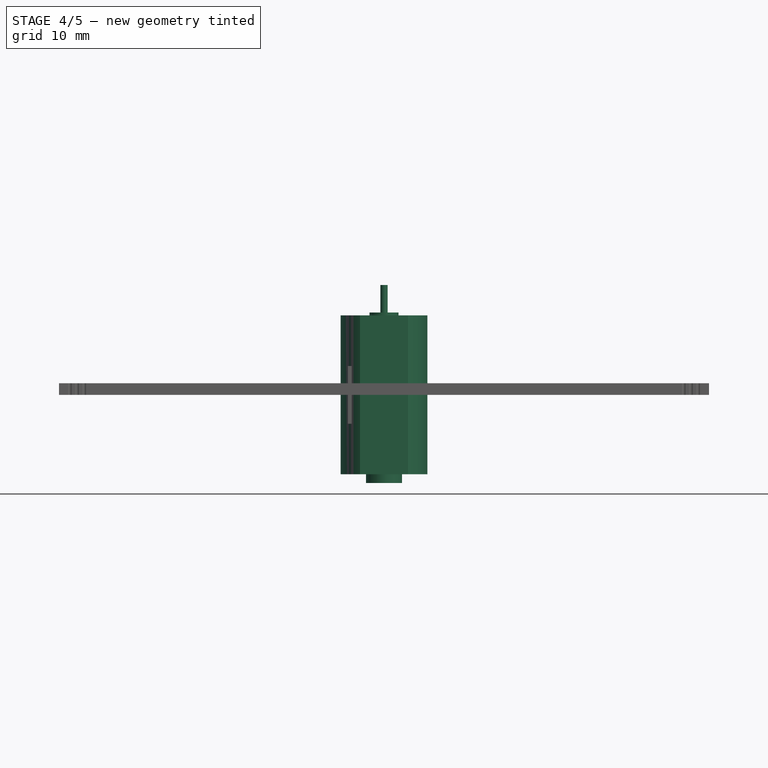
[diagram: stage 4 of 5 — front view after this stage's code; geometry added in this stage tinted green]
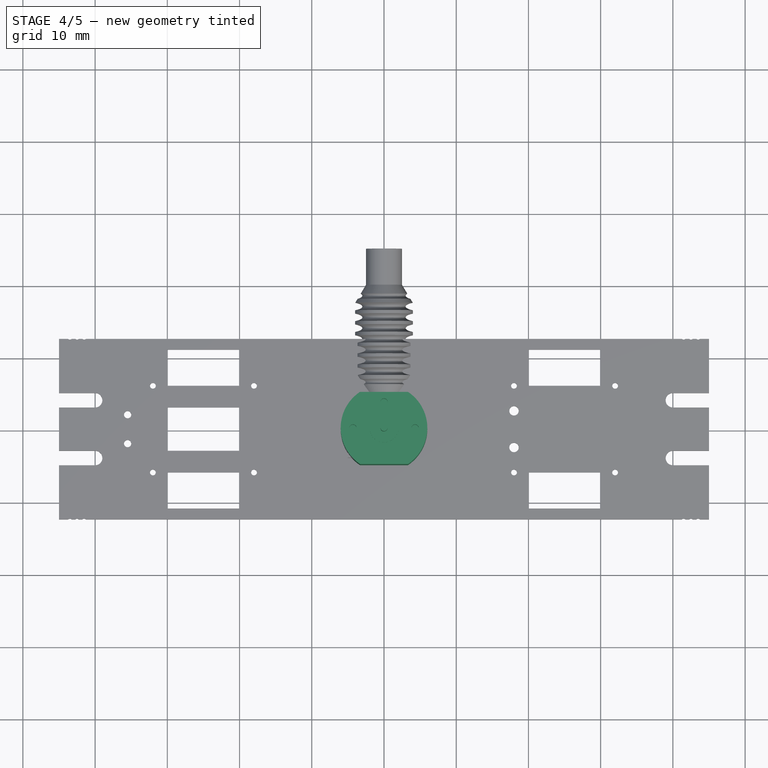
[diagram: stage 4 of 5 — top view after this stage's code; geometry added in this stage tinted green]
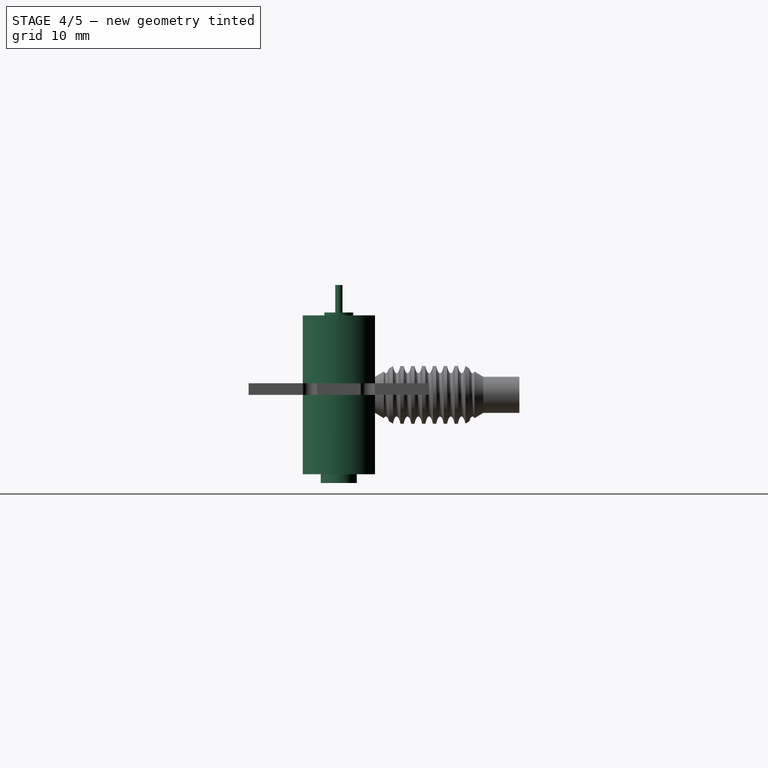
[diagram: stage 4 of 5 — right view after this stage's code; geometry added in this stage tinted green]
FEATURE [Part::Feature] Part__Feature  label="Body"
  Placement = pos=(-25,0,0) rot=(0,0,1;0rad)
  shape: bbox 10.42 x 22.77 x 10.42 mm, 19 faces (baked)
FEATURE [Part::Feature] Part__Feature028  label="Body001"
  Placement = pos=(25,0,0) rot=(0,0,1;0rad)
  shape: bbox 10.42 x 22.77 x 10.42 mm, 19 faces (baked)
FEATURE [Part::Feature] Part__Feature036  label="SOLID"
  shape: bbox 3.2 x 1.5 x 1.5 mm, 10 faces (baked)
FEATURE [App::Part] IS_POGO_D15x24_THT
  Group = -> [Part__Feature036]
  Origin = -> Origin038
  Placement = pos=(21.5,-6.5,1.65) rot=(0,1,0;1.5708rad)
FEATURE [Part::Feature] Part__Feature038  label="SOLID002"
  shape: bbox 3.2 x 1.5 x 1.5 mm, 10 faces (baked)
FEATURE [App::Part] IS_POGO_D15x24_THT002
  Group = -> [Part__Feature038]
  Origin = -> Origin040
  Placement = pos=(28.5,-6.5,1.65) rot=(0,1,0;1.5708rad)
FEATURE [Part::Feature] Part__Feature039  label="SOLID003"
  shape: bbox 3.2 x 1.5 x 1.5 mm, 10 faces (baked)
FEATURE [App::Part] IS_POGO_D15x24_THT003
  Group = -> [Part__Feature039]
  Origin = -> Origin041
  Placement = pos=(-21.5,-6.5,1.65) rot=(0,1,0;1.5708rad)
FEATURE [Part::Feature] Part__Feature042  label="COMPOUND001"
  shape: bbox 90 x 7.5 x 1.6 mm, 42 faces (baked)
FEATURE [Part::Feature] Part__Feature043  label="SOLID006"
  shape: bbox 3.2 x 1.5 x 1.5 mm, 10 faces (baked)
FEATURE [App::Part] IS_POGO_D15x24_THT006
  Group = -> [Part__Feature043]
  Origin = -> Origin050
  Placement = pos=(21.5,-6.5,1.65) rot=(0,1,0;1.5708rad)
FEATURE [Part::Feature] Part__Feature044  label="SOLID007"
  shape: bbox 3.2 x 1.5 x 1.5 mm, 10 faces (baked)
FEATURE [App::Part] IS_POGO_D15x24_THT010
  Group = -> [Part__Feature044]
  Origin = -> Origin048
  Placement = pos=(28.5,-6.5,1.65) rot=(0,1,0;1.5708rad)
FEATURE [Part::Feature] Part__Feature046  label="SOLID009"
  shape: bbox 3.2 x 1.5 x 1.5 mm, 10 faces (baked)
FEATURE [App::Part] IS_POGO_D15x24_THT009
  Group = -> [Part__Feature046]
  Origin = -> Origin045
  Placement = pos=(-21.5,-6.5,1.65) rot=(0,1,0;1.5708rad)
FEATURE [Part::Feature] Part__Feature048  label="SOLID011"
  shape: bbox 3.2 x 1.5 x 1.5 mm, 10 faces (baked)
FEATURE [App::Part] IS_POGO_D15x24_THT008
  Group = -> [Part__Feature048]
  Origin = -> Origin047
  Placement = pos=(-28.5,-6.5,1.65) rot=(0,1,0;1.5708rad)
FEATURE [Part::Feature] Part__Feature049  label="COMPOUND002"
  shape: bbox 90 x 7.5 x 1.6 mm, 42 faces (baked)
FEATURE [App::Part] Open_CASCADE_STEP_translator_6_9_1002  label="Open CASCADE STEP translator 6.9 003"
  Group = -> [IS_POGO_D15x24_THT006,IS_POGO_D15x24_THT010,IS_POGO_D15x24_THT009,IS_POGO_D15x24_THT008,Part__Feature049]
  Origin = -> Origin051
  Placement = pos=(0,0,0) rot=(1,0,0;1.5708rad)
FEATURE [App::Part] Part001  label="Wall001"
  Group = -> [Open_CASCADE_STEP_translator_6_9_1002]
  Origin = -> Origin052
  Placement = pos=(0,3.2,0) rot=(0,0,1;3.14159rad)
FEATURE [Sketcher::SketchObject] Sketch002
  MapMode = 5
  Support = -> [XY_Plane053]
  sketch-geometry (4):
    g0: ArcOfCircle CenterX=0 CenterY=0 CenterZ=0 NormalX=0 NormalY=0 NormalZ=1 AngleXU=0 Radius=6 StartAngle=2.15648 EndAngle=4.1267
    g1: ArcOfCircle CenterX=0 CenterY=0 CenterZ=0 NormalX=0 NormalY=0 NormalZ=1 AngleXU=0 Radius=6 StartAngle=5.29807 EndAngle=7.2683
    g2: LineSegment StartX=-3.31662 StartY=5 StartZ=0 EndX=3.31662 EndY=5 EndZ=0
    g3: LineSegment StartX=-3.31662 StartY=-5 StartZ=0 EndX=3.31662 EndY=-5 EndZ=0
  constraints (12):
    c: Coincident(g0,g-1)
    c: Coincident(g1,g0)
    c: Coincident(g2,g0)
    c: Coincident(g2,g1)
    c: Horizontal(g2)
    c: Coincident(g3,g0)
    c: Coincident(g3,g1)
    c: Horizontal(g3)
    c: Equal(g3,g2)
    c: DistanceY(g0,g0) = 10
    c: Radius(g0) = 6
    c: Equal(g0,g1)
FEATURE [PartDesign::Pad] Pad001
  Length = 22
  Length2 = 100
  Midplane = true
  Profile = -> Sketch002
  Type = 0
FEATURE [Sketcher::SketchObject] Sketch003
  MapMode = 5
  Placement = pos=(0,0,11) rot=(0,0,1;0rad)
  Support = -> [Pad001]
  sketch-geometry (1):
    g0: Circle CenterX=0 CenterY=0 CenterZ=0 NormalX=0 NormalY=0 NormalZ=1 AngleXU=0 Radius=2
  constraints (2):
    c: Coincident(g0,g-1)
    c: Radius(g0) = 2
FEATURE [PartDesign::Pad] Pad002
  BaseFeature = -> Pad001
  Length = 0.4
  Length2 = 100
  Profile = -> Sketch003
  Type = 0
FEATURE [Sketcher::SketchObject] Sketch004
  MapMode = 5
  Placement = pos=(0,0,11.4) rot=(0,0,1;0rad)
  Support = -> [Pad002]
  sketch-geometry (1):
    g0: Circle CenterX=0 CenterY=0 CenterZ=0 NormalX=0 NormalY=0 NormalZ=1 AngleXU=0 Radius=0.5
  constraints (2):
    c: Coincident(g0,g-1)
    c: Radius(g0) = 0.5
FEATURE [PartDesign::Pad] Pad003
  BaseFeature = -> Pad002
  Length = 3.8
  Length2 = 100
  Profile = -> Sketch004
  Type = 0
FEATURE [Sketcher::SketchObject] Sketch005
  MapMode = 5
  Placement = pos=(0,0,11) rot=(0,0,1;0rad)
  Support = -> [Pad003]
  sketch-geometry (5):
    g0: Circle CenterX=0 CenterY=3.6 CenterZ=0 NormalX=0 NormalY=0 NormalZ=1 AngleXU=0 Radius=0.5
    g1: Circle CenterX=-4.3 CenterY=0 CenterZ=0 NormalX=0 NormalY=0 NormalZ=1 AngleXU=0 Radius=0.5
    g2: Circle CenterX=4.3 CenterY=0 CenterZ=0 NormalX=0 NormalY=0 NormalZ=1 AngleXU=0 Radius=0.5
    g3: LineSegment [constr] StartX=4.3 StartY=0 StartZ=0 EndX=0 EndY=0 EndZ=0
    g4: LineSegment [constr] StartX=-4.3 StartY=0 StartZ=0 EndX=0 EndY=0 EndZ=0
  constraints (13):
    c: PointOnObject(g0,g-2)
    c: PointOnObject(g1,g-1)
    c: PointOnObject(g2,g-1)
    c: DistanceY(g-1,g0) = 3.6
    c: DistanceX(g-1,g2) = 4.3
    c: Coincident(g3,g2)
    c: Coincident(g3,g-1)
    c: Coincident(g4,g1)
    c: Coincident(g-1,g4)
    c: Equal(g4,g3)
    c: Equal(g0,g1)
    c: Equal(g1,g2)
    c: Radius(g0) = 0.5
FEATURE [PartDesign::Pocket] Pocket001
  BaseFeature = -> Pad003
  Length = 3
  Length2 = 100
  Profile = -> Sketch005
  Type = 0
FEATURE [Sketcher::SketchObject] Sketch006
  MapMode = 5
  Placement = pos=(0,0,-11) rot=(1,0,0;3.14159rad)
  Support = -> [Pocket001]
  sketch-geometry (2):
    g0: Circle CenterX=0 CenterY=0 CenterZ=0 NormalX=0 NormalY=0 NormalZ=1 AngleXU=0 Radius=2.5
    g1: Circle CenterX=0 CenterY=0 CenterZ=0 NormalX=0 NormalY=0 NormalZ=1 AngleXU=0 Radius=1
  constraints (4):
    c: Coincident(g0,g-1)
    c: Radius(g0) = 2.5
    c: Coincident(g1,g0)
    c: Radius(g1) = 1
FEATURE [PartDesign::Pad] Pad004
  BaseFeature = -> Pocket001
  Length = 1.2
  Length2 = 100
  Profile = -> Sketch006
  Type = 0
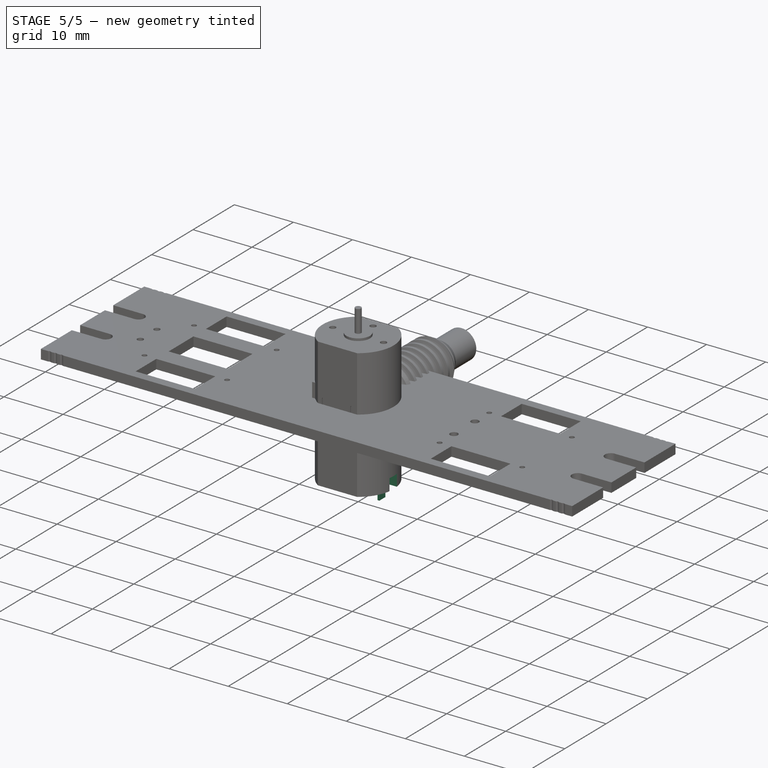
[diagram: stage 5 of 5 — iso view after this stage's code; geometry added in this stage tinted green]
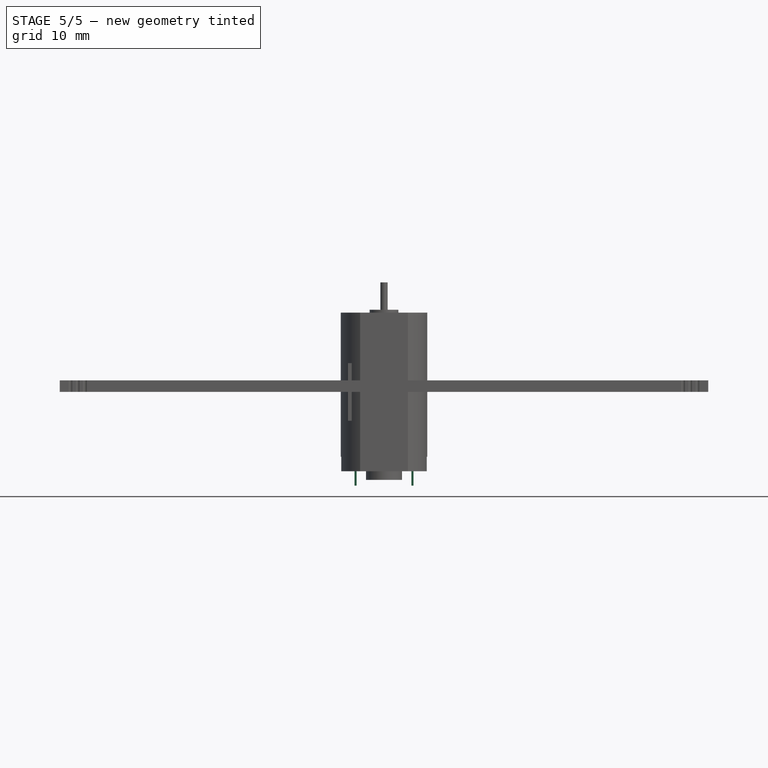
[diagram: stage 5 of 5 — front view after this stage's code; geometry added in this stage tinted green]
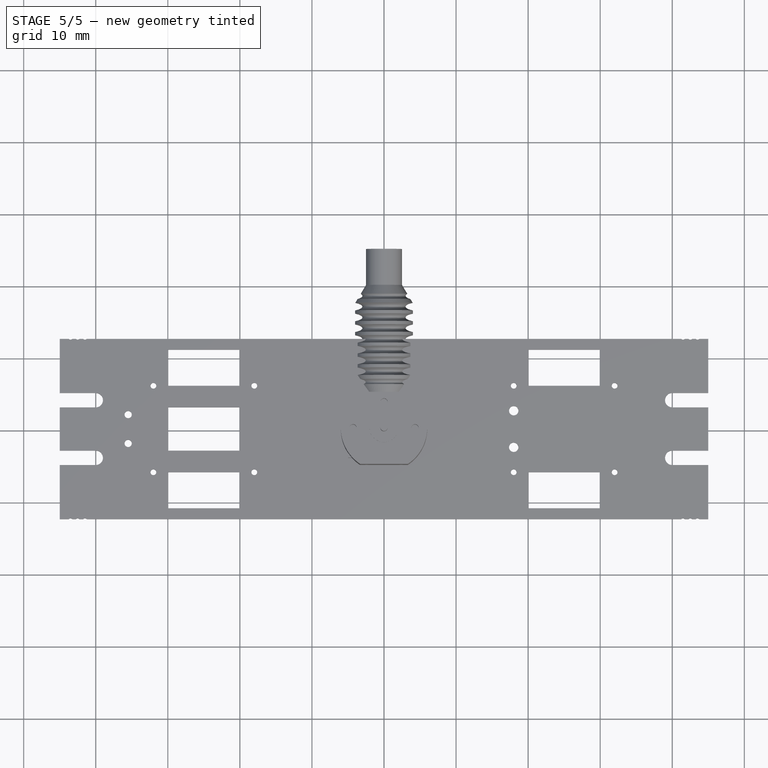
[diagram: stage 5 of 5 — top view after this stage's code; geometry added in this stage tinted green]
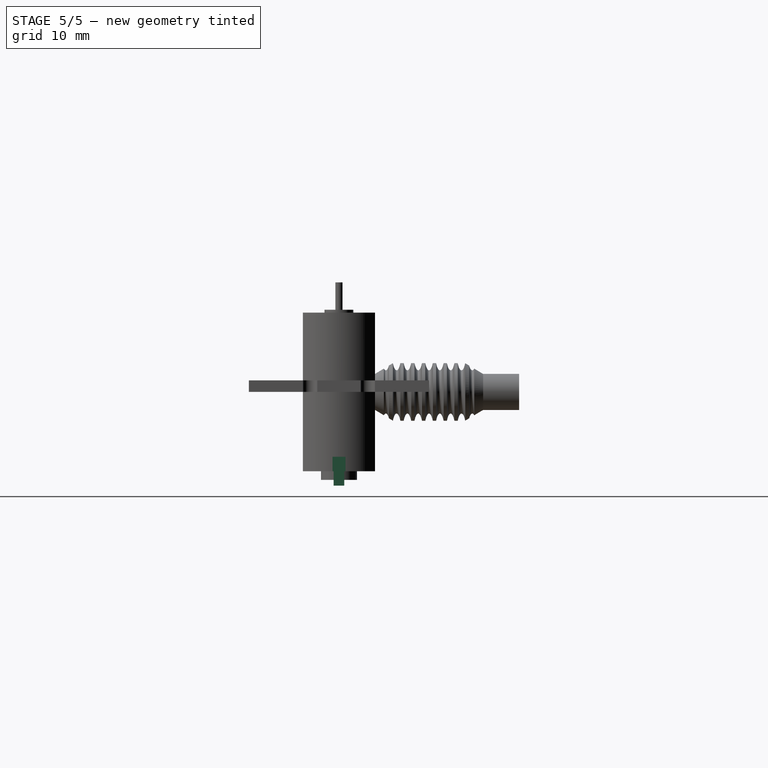
[diagram: stage 5 of 5 — right view after this stage's code; geometry added in this stage tinted green]
FEATURE [Sketcher::SketchObject] Sketch007
  MapMode = 5
  Placement = pos=(0,0,-11) rot=(1,0,0;3.14159rad)
  Support = -> [Pad004]
  sketch-geometry (12):
    g0: LineSegment StartX=-7.5 StartY=0.9 StartZ=0 EndX=-4.5 EndY=0.9 EndZ=0
    g1: LineSegment StartX=-4.5 StartY=0.9 StartZ=0 EndX=-4.5 EndY=-0.9 EndZ=0
    g2: LineSegment StartX=-4.5 StartY=-0.9 StartZ=0 EndX=-7.5 EndY=-0.9 EndZ=0
    g3: LineSegment StartX=-7.5 StartY=-0.9 StartZ=0 EndX=-7.5 EndY=0.9 EndZ=0
    g4: LineSegment StartX=7.5 StartY=0.9 StartZ=0 EndX=4.5 EndY=0.9 EndZ=0
    g5: LineSegment StartX=4.5 StartY=0.9 StartZ=0 EndX=4.5 EndY=-0.9 EndZ=0
    g6: LineSegment StartX=4.5 StartY=-0.9 StartZ=0 EndX=7.5 EndY=-0.9 EndZ=0
    g7: LineSegment StartX=7.5 StartY=-0.9 StartZ=0 EndX=7.5 EndY=0.9 EndZ=0
    g8: LineSegment [constr] StartX=-4.5 StartY=0.9 StartZ=0 EndX=0 EndY=0 EndZ=0
    g9: LineSegment [constr] StartX=0 StartY=0 StartZ=0 EndX=-4.5 EndY=-0.9 EndZ=0
    g10: LineSegment [constr] StartX=0 StartY=0 StartZ=0 EndX=4.5 EndY=0.9 EndZ=0
    g11: LineSegment [constr] StartX=0 StartY=0 StartZ=0 EndX=4.5 EndY=-0.9 EndZ=0
  constraints (32):
    c: Coincident(g0,g1)
    c: Coincident(g1,g2)
    c: Coincident(g2,g3)
    c: Coincident(g3,g0)
    c: Horizontal(g0)
    c: Horizontal(g2)
    c: Vertical(g1)
    c: Vertical(g3)
    c: Coincident(g4,g5)
    c: Coincident(g5,g6)
    c: Coincident(g6,g7)
    c: Coincident(g7,g4)
    c: Horizontal(g4)
    c: Horizontal(g6)
    c: Vertical(g5)
    c: Vertical(g7)
    c: Equal(g1,g5)
    c: Equal(g4,g0)
    c: Coincident(g8,g0)
    c: Coincident(g8,g-1)
    c: Coincident(g9,g8)
    c: Coincident(g9,g1)
    c: Coincident(g10,g8)
    c: Coincident(g10,g4)
    c: Coincident(g11,g8)
    c: Coincident(g11,g5)
    c: Equal(g11,g10)
    c: Equal(g10,g8)
    c: Equal(g8,g9)
    c: DistanceX(g0,g0) = 3
    c: DistanceX(g0,g4) = 9
    c: DistanceY(g3,g3) = 1.8
FEATURE [PartDesign::Pocket] Pocket002
  BaseFeature = -> Pad004
  Length = 2
  Length2 = 100
  Profile = -> Sketch007
  Type = 0
FEATURE [Sketcher::SketchObject] Sketch008
  MapMode = 5
  Placement = pos=(0,0,-11) rot=(1,0,0;3.14159rad)
  Support = -> [Pocket002]
  sketch-geometry (12):
    g0: LineSegment StartX=-4.1 StartY=0.739024 StartZ=0 EndX=-3.8 EndY=0.739024 EndZ=0
    g1: LineSegment StartX=-3.8 StartY=0.739024 StartZ=0 EndX=-3.8 EndY=-0.739024 EndZ=0
    g2: LineSegment StartX=-3.8 StartY=-0.739024 StartZ=0 EndX=-4.1 EndY=-0.739024 EndZ=0
    g3: LineSegment StartX=-4.1 StartY=-0.739024 StartZ=0 EndX=-4.1 EndY=0.739024 EndZ=0
    g4: LineSegment StartX=3.8 StartY=0.739024 StartZ=0 EndX=4.1 EndY=0.739024 EndZ=0
    g5: LineSegment StartX=4.1 StartY=0.739024 StartZ=0 EndX=4.1 EndY=-0.739024 EndZ=0
    g6: LineSegment StartX=4.1 StartY=-0.739024 StartZ=0 EndX=3.8 EndY=-0.739024 EndZ=0
    g7: LineSegment StartX=3.8 StartY=-0.739024 StartZ=0 EndX=3.8 EndY=0.739024 EndZ=0
    g8: LineSegment [constr] StartX=-3.8 StartY=0.739024 StartZ=0 EndX=0 EndY=0 EndZ=0
    g9: LineSegment [constr] StartX=0 StartY=0 StartZ=0 EndX=3.8 EndY=0.739024 EndZ=0
    g10: LineSegment [constr] StartX=3.8 StartY=-0.739024 StartZ=0 EndX=0 EndY=0 EndZ=0
    g11: LineSegment [constr] StartX=0 StartY=0 StartZ=0 EndX=-3.8 EndY=-0.739024 EndZ=0
  constraints (31):
    c: Coincident(g0,g1)
    c: Coincident(g1,g2)
    c: Coincident(g2,g3)
    c: Coincident(g3,g0)
    c: Horizontal(g0)
    c: Horizontal(g2)
    c: Vertical(g1)
    c: Vertical(g3)
    c: Coincident(g4,g5)
    c: Coincident(g5,g6)
    c: Coincident(g6,g7)
    c: Coincident(g7,g4)
    c: Horizontal(g4)
    c: Horizontal(g6)
    c: Vertical(g5)
    c: Vertical(g7)
    c: Coincident(g8,g0)
    c: Coincident(g8,g-1)
    c: Coincident(g9,g8)
    c: Coincident(g9,g4)
    c: Coincident(g10,g6)
    c: Coincident(g10,g8)
    c: Coincident(g11,g8)
    c: Coincident(g11,g1)
    c: Equal(g11,g8)
    c: Equal(g8,g9)
    c: Equal(g9,g10)
    c: Equal(g7,g1)
    c: Equal(g0,g4)
    c: DistanceX(g0,g0) = 0.3
    c: DistanceX(g0,g4) = 8.2
FEATURE [PartDesign::Pad] Pad005
  BaseFeature = -> Pocket002
  Length = 2
  Length2 = 100
  Profile = -> Sketch008
  Type = 0
FEATURE [Sketcher::SketchObject] Sketch009
  MapMode = 5
  Placement = pos=(0,-5,0) rot=(1,0,0;1.5708rad)
  Support = -> [Pad005]
  sketch-geometry (12):
    g0: ArcOfCircle CenterX=-2.4 CenterY=2.4 CenterZ=0 NormalX=0 NormalY=0 NormalZ=1 AngleXU=0 Radius=0.25 StartAngle=0 EndAngle=3.14159
    g1: ArcOfCircle CenterX=-2.4 CenterY=-2.4 CenterZ=0 NormalX=0 NormalY=0 NormalZ=1 AngleXU=0 Radius=0.25 StartAngle=3.14159 EndAngle=6.28319
    g2: LineSegment StartX=-2.65 StartY=2.4 StartZ=0 EndX=-2.65 EndY=-2.4 EndZ=0
    g3: LineSegment StartX=-2.15 StartY=2.4 StartZ=0 EndX=-2.15 EndY=-2.4 EndZ=0
    g4: ArcOfCircle CenterX=2.4 CenterY=2.4 CenterZ=0 NormalX=0 NormalY=0 NormalZ=1 AngleXU=0 Radius=0.25 StartAngle=6e-16 EndAngle=3.14159
    g5: ArcOfCircle CenterX=2.4 CenterY=-2.4 CenterZ=0 NormalX=0 NormalY=0 NormalZ=1 AngleXU=0 Radius=0.25 StartAngle=3.14159 EndAngle=6.28319
    g6: LineSegment StartX=2.15 StartY=2.4 StartZ=0 EndX=2.15 EndY=-2.4 EndZ=0
    g7: LineSegment StartX=2.65 StartY=2.4 StartZ=0 EndX=2.65 EndY=-2.4 EndZ=0
    g8: LineSegment [constr] StartX=0 StartY=0 StartZ=0 EndX=-2.4 EndY=-2.4 EndZ=0
    g9: LineSegment [constr] StartX=0 StartY=0 StartZ=0 EndX=-2.4 EndY=2.4 EndZ=0
    g10: LineSegment [constr] StartX=0 StartY=0 StartZ=0 EndX=2.4 EndY=2.4 EndZ=0
    g11: LineSegment [constr] StartX=0 StartY=0 StartZ=0 EndX=2.4 EndY=-2.4 EndZ=0
  constraints (28):
    c: Tangent(g0,g3) = 1.5708
    c: Tangent(g0,g2) = -1.5708
    c: Tangent(g2,g1) = -1.5708
    c: Tangent(g3,g1) = 1.5708
    c: Vertical(g2)
    c: Equal(g0,g1)
    c: Tangent(g4,g7) = 1.5708
    c: Tangent(g4,g6) = -1.5708
    c: Tangent(g6,g5) = -1.5708
    c: Tangent(g7,g5) = 1.5708
    c: Vertical(g6)
    c: Equal(g4,g5)
    c: Coincident(g8,g-1)
    c: Coincident(g8,g1)
    c: Coincident(g9,g8)
    c: Coincident(g9,g0)
    c: Coincident(g10,g8)
    c: Coincident(g4,g10)
    c: Coincident(g11,g8)
    c: Coincident(g11,g5)
    c: Equal(g11,g10)
    c: Equal(g10,g9)
    c: Equal(g9,g8)
    c: Equal(g3,g6)
    c: Equal(g4,g0)
    c: DistanceY(g1,g0) = 4.8
    c: DistanceX(g0,g4) = 4.8
    c: Radius(g1) = 0.25
FEATURE [PartDesign::Pocket] Pocket003
  BaseFeature = -> Pad005
  Length = 0.2
  Length2 = 100
  Profile = -> Sketch009
  Type = 0
FEATURE [PartDesign::PolarPattern] PolarPattern001
  Angle = 360
  Axis = -> Z_Axis053
  BaseFeature = -> Pocket003
  Occurrences = 2
  Originals = -> [Pocket003]
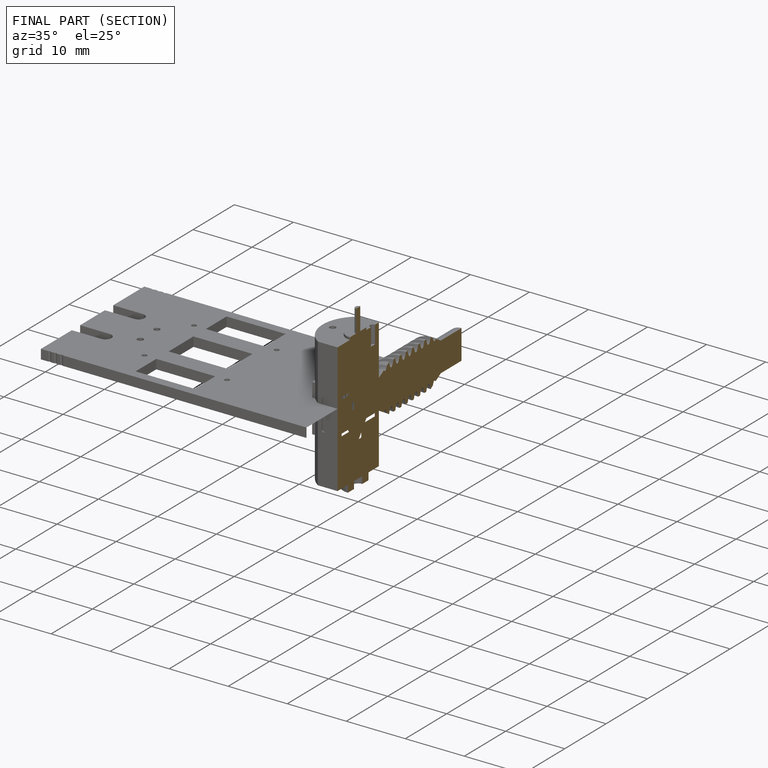
[diagram: finished part — half-section view (interior)]
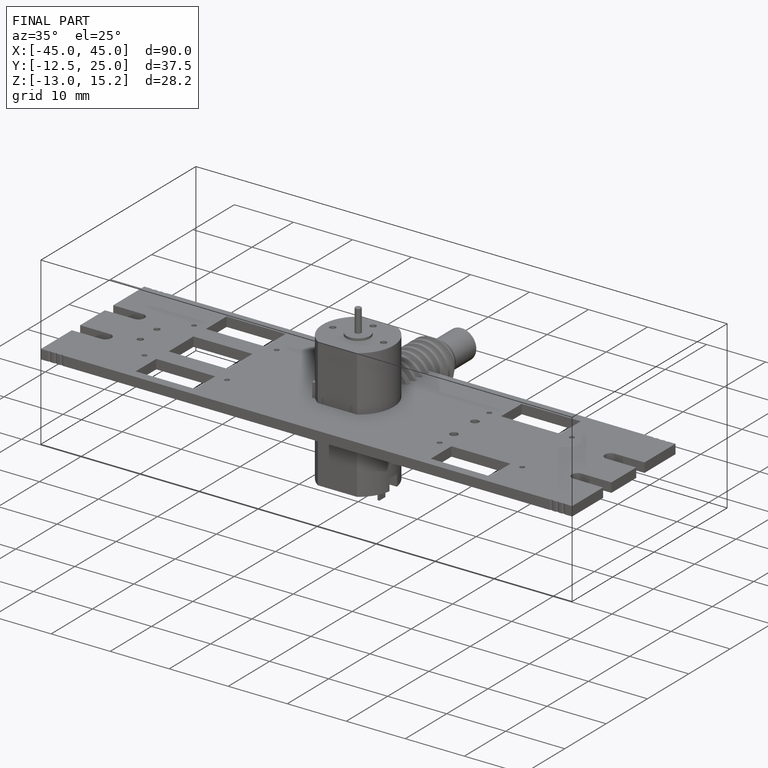
[diagram: finished part — iso view with bounding-box wireframe]
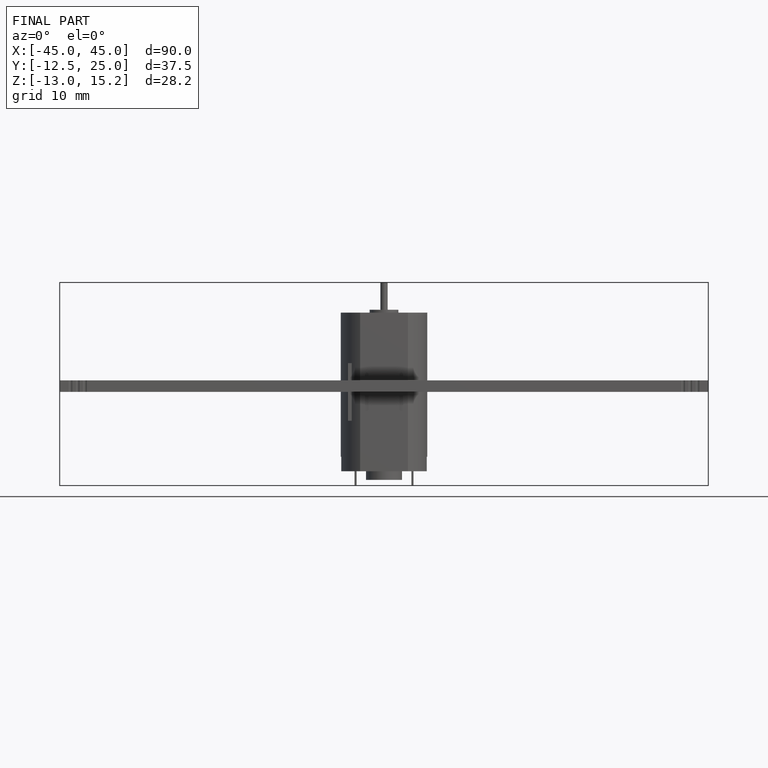
[diagram: finished part — front view with bounding-box wireframe]
